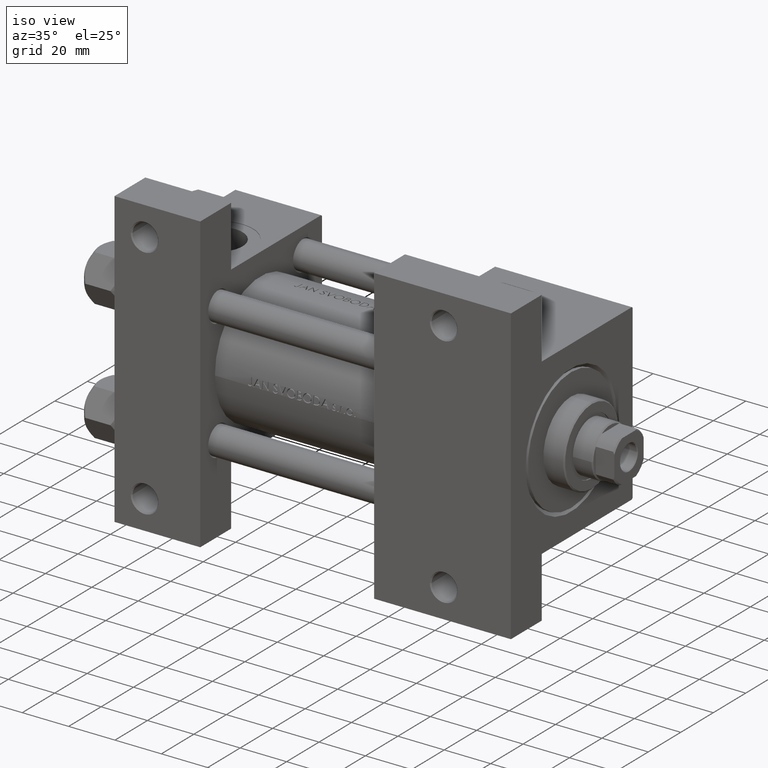
[diagram: clean part render]
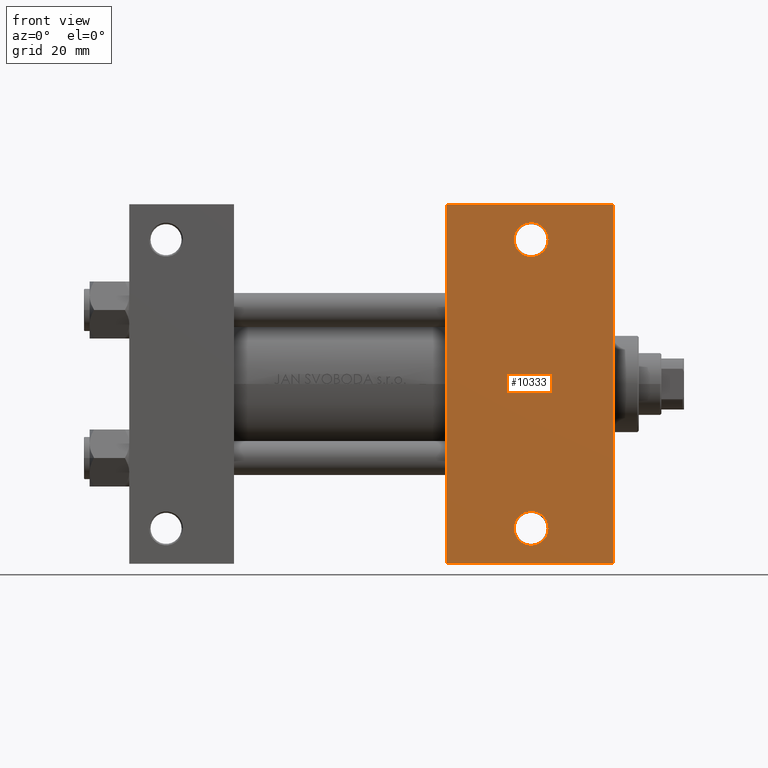
[diagram: tour spotlight — one face highlighted and labeled with its STEP entity id]
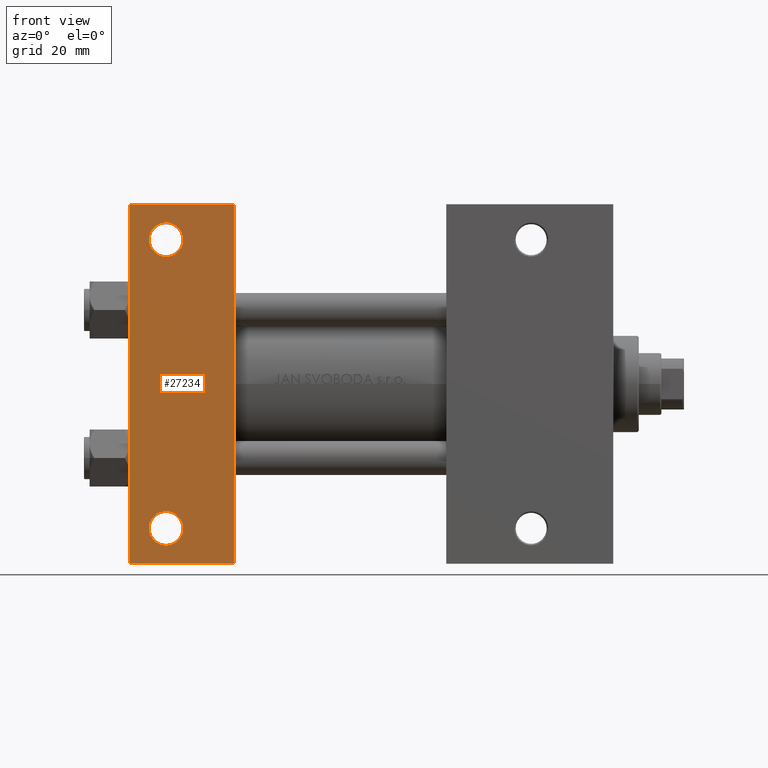
[diagram: tour spotlight — one face highlighted and labeled with its STEP entity id]
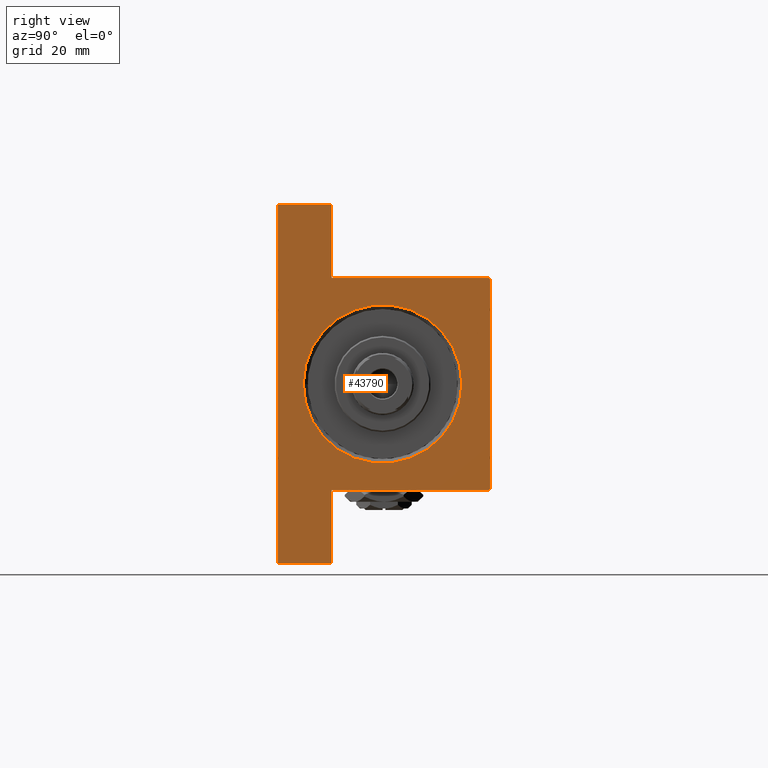
[diagram: tour spotlight — one face highlighted and labeled with its STEP entity id]
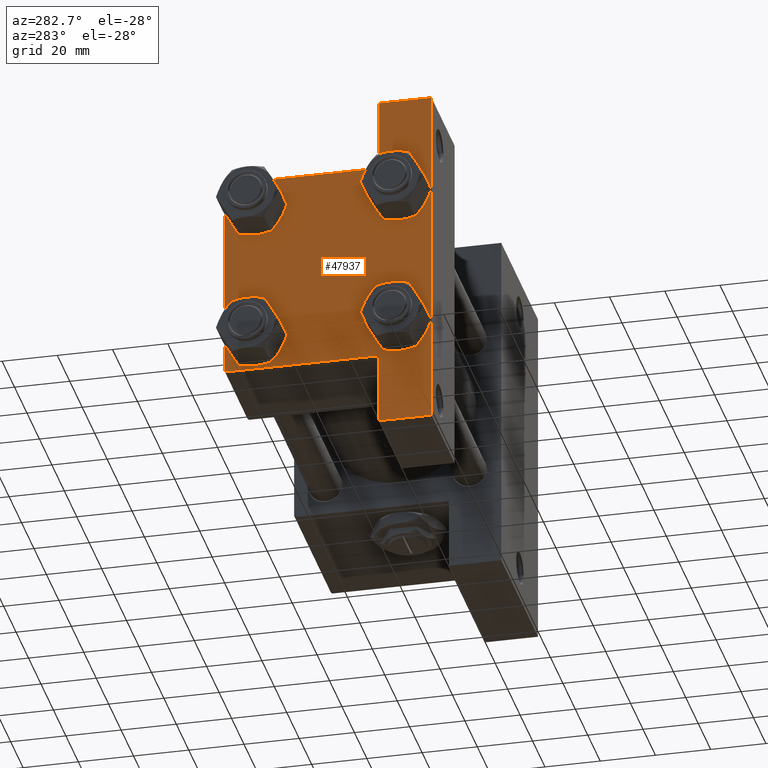
[diagram: tour spotlight — one face highlighted and labeled with its STEP entity id]
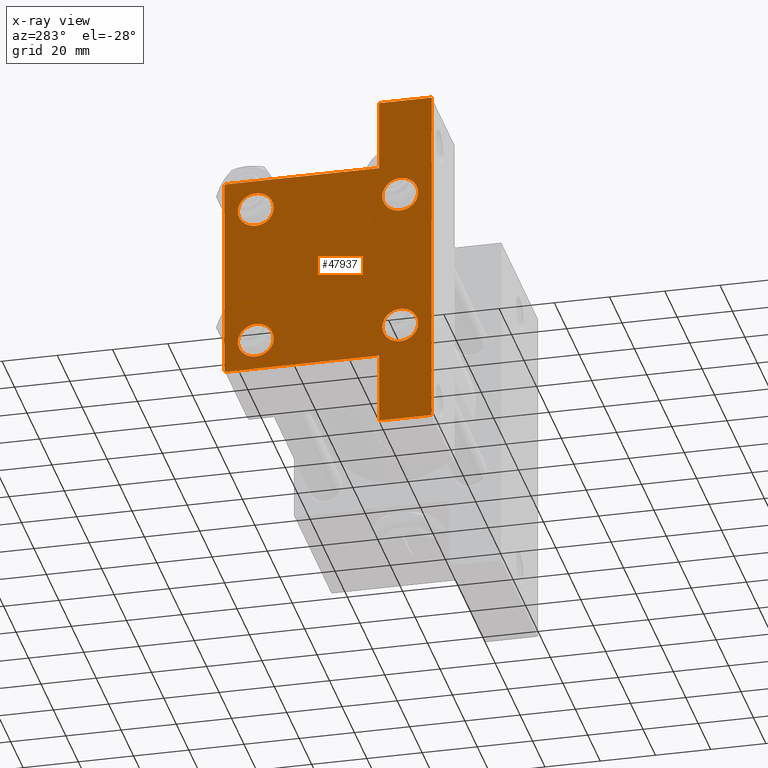
[diagram: x-ray of the same camera — body ghosted, this tour face saturated]
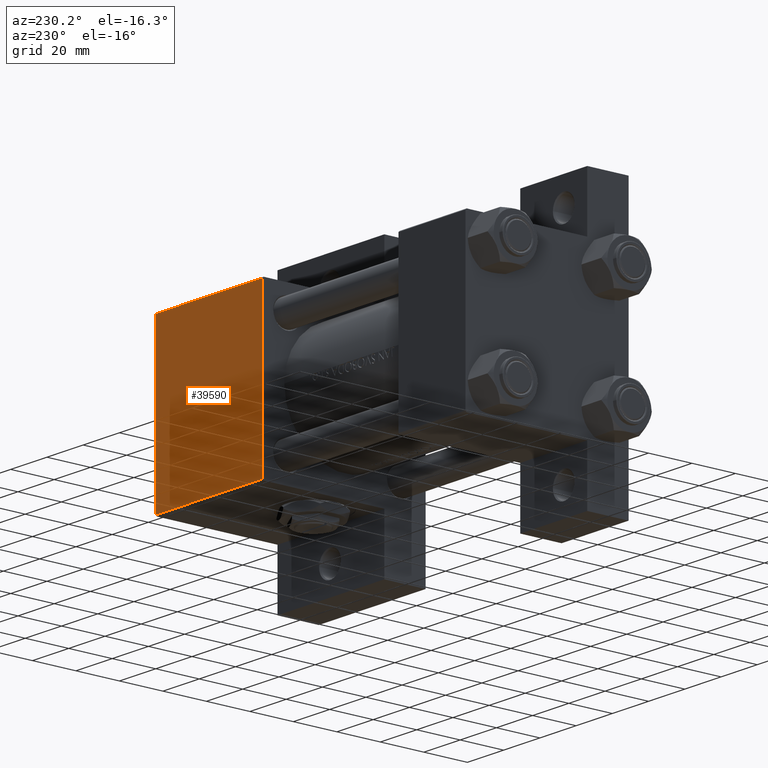
[diagram: tour spotlight — one face highlighted and labeled with its STEP entity id]
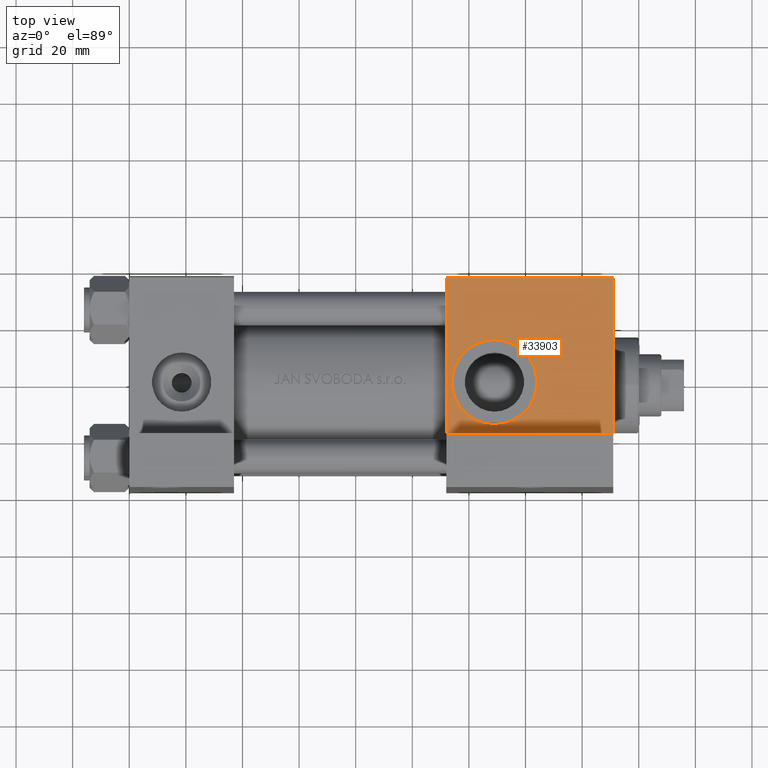
[diagram: tour spotlight — one face highlighted and labeled with its STEP entity id]
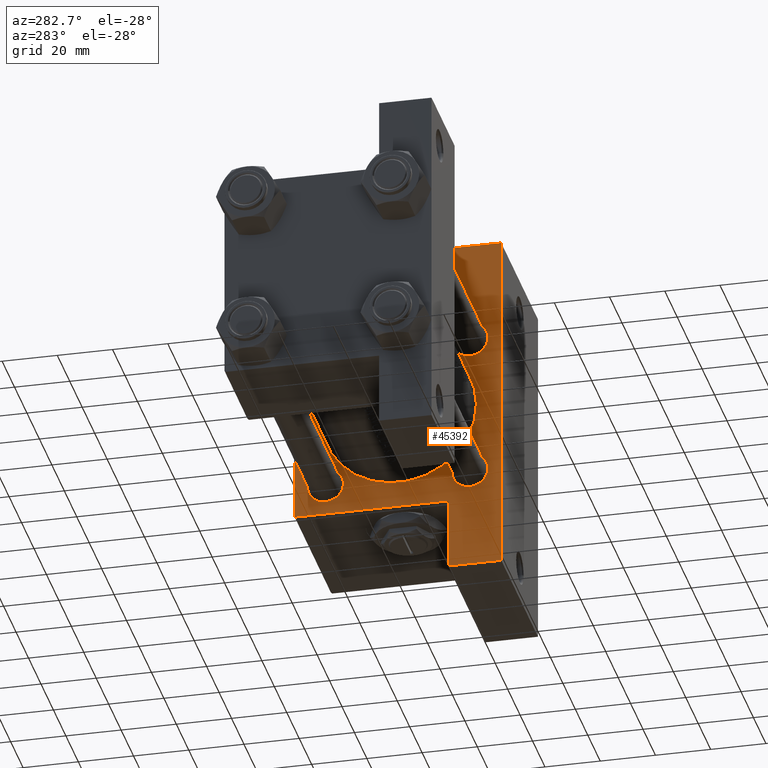
[diagram: tour spotlight — one face highlighted and labeled with its STEP entity id]
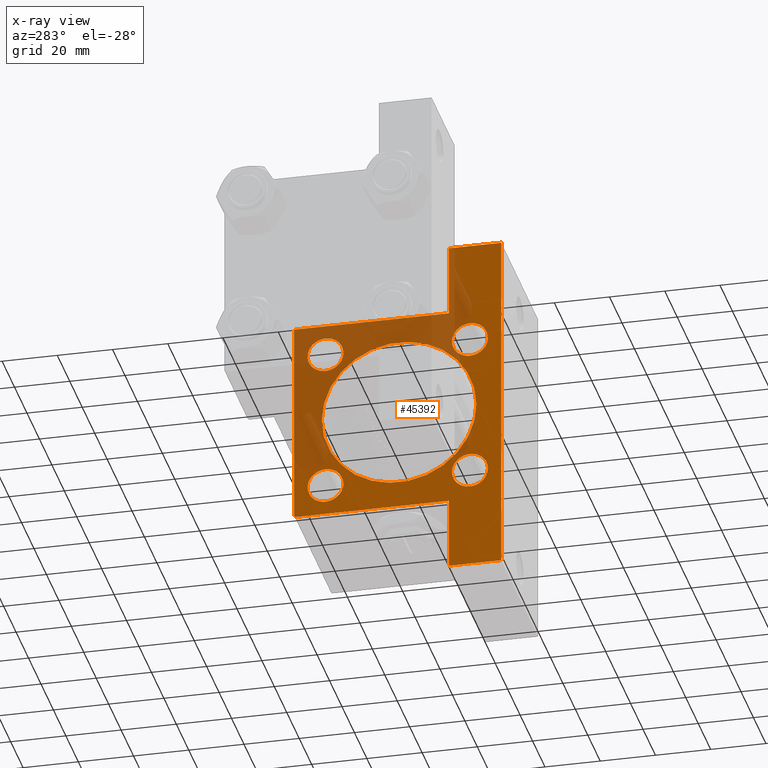
[diagram: x-ray of the same camera — body ghosted, this tour face saturated]
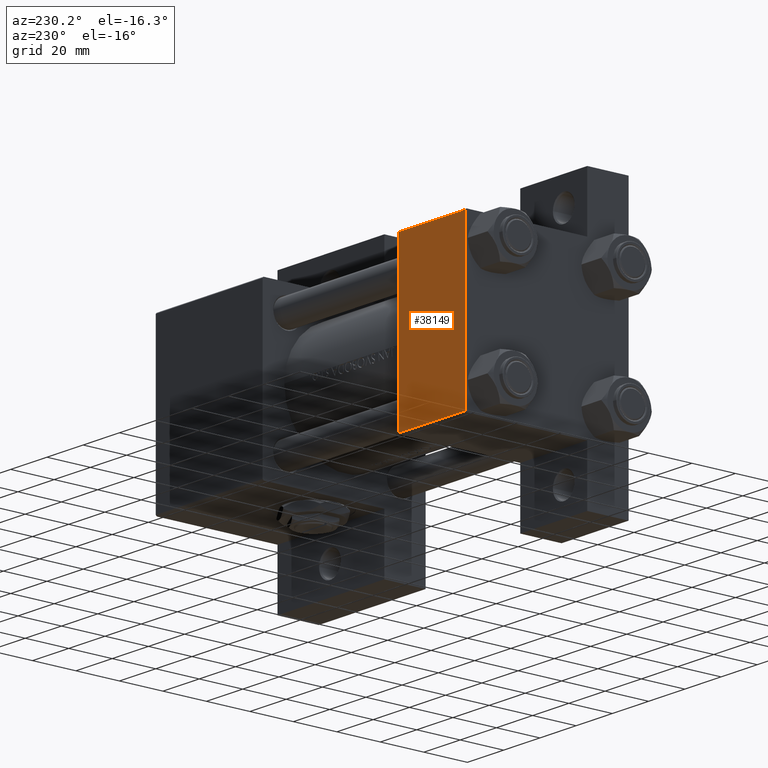
[diagram: tour spotlight — one face highlighted and labeled with its STEP entity id]
A machine part: a face-by-face anatomy tour. The part has 1134 B-rep faces; the first image is the clean iso view, then the 8 largest visible faces are spotlighted one at a time (largest first), each with its STEP entity span.

Face 1 — front view, entity #10333. In plain terms, the highlighted planar face has unit normal (0, -1, 0).
Definition (entity closure, byte-faithful):
#315 = CARTESIAN_POINT ( 'NONE',  ( 136.0005000000000450, -50.99999999999999289, -37.50000000000000000 ) ) ;
#571 = VECTOR ( 'NONE', #35503, 1000.000000000000000 ) ;
#1239 = VERTEX_POINT ( 'NONE', #20776 ) ;
#1490 = ORIENTED_EDGE ( 'NONE', *, *, #36565, .T. ) ;
#1755 = VECTOR ( 'NONE', #30343, 1000.000000000000000 ) ;
#1948 = CARTESIAN_POINT ( 'NONE',  ( 170.9999999999999716, -63.50000000000002842, -37.50000000000000000 ) ) ;
#3057 = DIRECTION ( 'NONE',  ( -0.000000000000000000, -0.000000000000000000, 1.000000000000000000 ) ) ;
#3220 = EDGE_LOOP ( 'NONE', ( #30330, #24699, #41104, #33612 ) ) ;
#6596 = VERTEX_POINT ( 'NONE', #45132 ) ;
#7394 = CARTESIAN_POINT ( 'NONE',  ( 147.9994999999999834, 50.99999999999999289, -37.50000000000000000 ) ) ;
#10289 = ORIENTED_EDGE ( 'NONE', *, *, #15805, .T. ) ;
#10333 = ADVANCED_FACE ( 'NONE', ( #36112, #28658, #47333 ), #17213, .T. ) ;
#10595 = AXIS2_PLACEMENT_3D ( 'NONE', #28982, #3057, #25484 ) ;
#10735 = LINE ( 'NONE', #11224, #40207 ) ;
#11224 = CARTESIAN_POINT ( 'NONE',  ( 170.9999999999999716, 37.50000000000000000, -37.50000000000000000 ) ) ;
#11683 = EDGE_CURVE ( 'NONE', #44704, #44523, #20821, .T. ) ;
#12347 = CARTESIAN_POINT ( 'NONE',  ( 171.0000000000000000, 63.50000000000000000, -37.50000000000000000 ) ) ;
#13319 = AXIS2_PLACEMENT_3D ( 'NONE', #32376, #47573, #40109 ) ;
#13617 = CARTESIAN_POINT ( 'NONE',  ( 111.9999999999999858, 37.50000000000000000, -37.50000000000000000 ) ) ;
#13736 = EDGE_LOOP ( 'NONE', ( #41091, #1490 ) ) ;
#14046 = CARTESIAN_POINT ( 'NONE',  ( 142.0000000000000284, 50.99999999999999289, -37.50000000000000000 ) ) ;
#15805 = EDGE_CURVE ( 'NONE', #6596, #19431, #41288, .T. ) ;
#16117 = CIRCLE ( 'NONE', #31197, 5.999499999999962974 ) ;
#16238 = DIRECTION ( 'NONE',  ( 1.000000000000000000, 0.000000000000000000, 0.000000000000000000 ) ) ;
#17213 = PLANE ( 'NONE',  #13319 ) ;
#17732 = CARTESIAN_POINT ( 'NONE',  ( 142.0000000000000284, -50.99999999999999289, -37.50000000000000000 ) ) ;
#18037 = CARTESIAN_POINT ( 'NONE',  ( 111.9999999999999858, 63.50000000000000000, -37.50000000000000000 ) ) ;
#19177 = AXIS2_PLACEMENT_3D ( 'NONE', #14046, #36917, #44405 ) ;
#19431 = VERTEX_POINT ( 'NONE', #315 ) ;
#19827 = AXIS2_PLACEMENT_3D ( 'NONE', #33966, #41453, #29512 ) ;
#20776 = CARTESIAN_POINT ( 'NONE',  ( 136.0005000000000450, 50.99999999999999289, -37.50000000000000000 ) ) ;
#20821 = LINE ( 'NONE', #13617, #571 ) ;
#21939 = DIRECTION ( 'NONE',  ( -0.000000000000000000, -0.000000000000000000, 1.000000000000000000 ) ) ;
#22213 = VERTEX_POINT ( 'NONE', #1948 ) ;
#22950 = VERTEX_POINT ( 'NONE', #7394 ) ;
#23625 = CARTESIAN_POINT ( 'NONE',  ( 111.9999999999999716, -63.50000000000000000, -37.50000000000000000 ) ) ;
#23699 = LINE ( 'NONE', #42617, #34418 ) ;
#23723 = EDGE_CURVE ( 'NONE', #1239, #22950, #36645, .T. ) ;
#24699 = ORIENTED_EDGE ( 'NONE', *, *, #34836, .T. ) ;
#25109 = EDGE_CURVE ( 'NONE', #22213, #44523, #42548, .T. ) ;
#25484 = DIRECTION ( 'NONE',  ( -1.000000000000000000, 0.000000000000000000, 0.000000000000000000 ) ) ;
#26518 = CARTESIAN_POINT ( 'NONE',  ( 111.9999999999999716, -63.50000000000000000, -37.50000000000000000 ) ) ;
#26638 = DIRECTION ( 'NONE',  ( 0.000000000000000000, -1.000000000000000000, 0.000000000000000000 ) ) ;
#28658 = FACE_BOUND ( 'NONE', #44590, .T. ) ;
#28955 = ORIENTED_EDGE ( 'NONE', *, *, #33408, .T. ) ;
#28982 = CARTESIAN_POINT ( 'NONE',  ( 142.0000000000000284, 50.99999999999999289, -37.50000000000000000 ) ) ;
#29512 = DIRECTION ( 'NONE',  ( -1.000000000000000000, 0.000000000000000000, 0.000000000000000000 ) ) ;
#29877 = VERTEX_POINT ( 'NONE', #12347 ) ;
#30330 = ORIENTED_EDGE ( 'NONE', *, *, #11683, .F. ) ;
#30343 = DIRECTION ( 'NONE',  ( -1.000000000000000000, 4.704334850106594808E-16, -0.000000000000000000 ) ) ;
#31197 = AXIS2_PLACEMENT_3D ( 'NONE', #17732, #21939, #33858 ) ;
#32376 = CARTESIAN_POINT ( 'NONE',  ( 170.9999999999999716, 37.50000000000000000, -37.50000000000000000 ) ) ;
#33408 = EDGE_CURVE ( 'NONE', #19431, #6596, #16117, .T. ) ;
#33612 = ORIENTED_EDGE ( 'NONE', *, *, #25109, .T. ) ;
#33858 = DIRECTION ( 'NONE',  ( -1.000000000000000000, 0.000000000000000000, 0.000000000000000000 ) ) ;
#33966 = CARTESIAN_POINT ( 'NONE',  ( 142.0000000000000284, -50.99999999999999289, -37.50000000000000000 ) ) ;
#34418 = VECTOR ( 'NONE', #16238, 1000.000000000000000 ) ;
#34836 = EDGE_CURVE ( 'NONE', #44704, #29877, #23699, .T. ) ;
#35503 = DIRECTION ( 'NONE',  ( 0.000000000000000000, -1.000000000000000000, 0.000000000000000000 ) ) ;
#36112 = FACE_BOUND ( 'NONE', #13736, .T. ) ;
#36565 = EDGE_CURVE ( 'NONE', #22950, #1239, #45586, .T. ) ;
#36645 = CIRCLE ( 'NONE', #19177, 5.999499999999962974 ) ;
#36917 = DIRECTION ( 'NONE',  ( -0.000000000000000000, -0.000000000000000000, 1.000000000000000000 ) ) ;
#40109 = DIRECTION ( 'NONE',  ( -1.000000000000000000, 0.000000000000000000, -0.000000000000000000 ) ) ;
#40207 = VECTOR ( 'NONE', #26638, 1000.000000000000000 ) ;
#41091 = ORIENTED_EDGE ( 'NONE', *, *, #23723, .T. ) ;
#41104 = ORIENTED_EDGE ( 'NONE', *, *, #41414, .T. ) ;
#41288 = CIRCLE ( 'NONE', #19827, 5.999499999999962974 ) ;
#41414 = EDGE_CURVE ( 'NONE', #29877, #22213, #10735, .T. ) ;
#41453 = DIRECTION ( 'NONE',  ( -0.000000000000000000, -0.000000000000000000, 1.000000000000000000 ) ) ;
#42548 = LINE ( 'NONE', #23625, #1755 ) ;
#42617 = CARTESIAN_POINT ( 'NONE',  ( 111.9999999999999858, 63.50000000000000000, -37.50000000000000000 ) ) ;
#44405 = DIRECTION ( 'NONE',  ( -1.000000000000000000, 0.000000000000000000, 0.000000000000000000 ) ) ;
#44523 = VERTEX_POINT ( 'NONE', #26518 ) ;
#44590 = EDGE_LOOP ( 'NONE', ( #28955, #10289 ) ) ;
#44704 = VERTEX_POINT ( 'NONE', #18037 ) ;
#45132 = CARTESIAN_POINT ( 'NONE',  ( 147.9994999999999834, -50.99999999999999289, -37.50000000000000000 ) ) ;
#45586 = CIRCLE ( 'NONE', #10595, 5.999499999999962974 ) ;
#47333 = FACE_OUTER_BOUND ( 'NONE', #3220, .T. ) ;
#47573 = DIRECTION ( 'NONE',  ( 0.000000000000000000, 0.000000000000000000, -1.000000000000000000 ) ) ;

Face 2 — front view, entity #27234. In plain terms, the highlighted planar face has unit normal (0, -1, -0).
Definition (entity closure, byte-faithful):
#1496 = CARTESIAN_POINT ( 'NONE',  ( 1.595073532467135441E-14, 63.50000000000000000, -37.50000000000002132 ) ) ;
#2239 = LINE ( 'NONE', #1496, #5472 ) ;
#4059 = DIRECTION ( 'NONE',  ( 0.000000000000000000, 1.000000000000000000, 0.000000000000000000 ) ) ;
#4624 = CARTESIAN_POINT ( 'NONE',  ( 3.977209754999747208E-16, -63.50000000000000000, -37.49999999999999289 ) ) ;
#4709 = EDGE_CURVE ( 'NONE', #48599, #30050, #16285, .T. ) ;
#4775 = DIRECTION ( 'NONE',  ( 0.000000000000000000, 1.000000000000000000, 0.000000000000000000 ) ) ;
#5087 = DIRECTION ( 'NONE',  ( 0.000000000000000000, 1.000000000000000000, 0.000000000000000000 ) ) ;
#5345 = CARTESIAN_POINT ( 'NONE',  ( 12.99999999999999822, 50.99999999999997868, -37.50000000000000000 ) ) ;
#5472 = VECTOR ( 'NONE', #17453, 1000.000000000000000 ) ;
#5840 = CARTESIAN_POINT ( 'NONE',  ( 12.99999999999999822, -51.00000000000000711, -37.50000000000000711 ) ) ;
#7234 = CARTESIAN_POINT ( 'NONE',  ( 37.00000000000001421, 63.50000000000000000, -37.50000000000002132 ) ) ;
#7364 = DIRECTION ( 'NONE',  ( -1.000000000000000000, -0.000000000000000000, -0.000000000000000000 ) ) ;
#7495 = VERTEX_POINT ( 'NONE', #35217 ) ;
#7665 = EDGE_CURVE ( 'NONE', #30050, #48599, #45014, .T. ) ;
#7680 = VECTOR ( 'NONE', #7364, 1000.000000000000000 ) ;
#7979 = EDGE_LOOP ( 'NONE', ( #36957, #26556 ) ) ;
#8592 = VECTOR ( 'NONE', #48788, 1000.000000000000000 ) ;
#8844 = FACE_BOUND ( 'NONE', #7979, .T. ) ;
#9336 = CARTESIAN_POINT ( 'NONE',  ( 7.000500000000061895, 50.99999999999997868, -37.50000000000000000 ) ) ;
#9666 = EDGE_CURVE ( 'NONE', #13260, #49161, #18839, .T. ) ;
#9690 = CIRCLE ( 'NONE', #26362, 5.999499999999935440 ) ;
#10042 = CARTESIAN_POINT ( 'NONE',  ( 1.595073532467135441E-14, 63.50000000000000000, -37.50000000000002132 ) ) ;
#11105 = ORIENTED_EDGE ( 'NONE', *, *, #28999, .T. ) ;
#11509 = AXIS2_PLACEMENT_3D ( 'NONE', #22994, #45889, #4059 ) ;
#12217 = AXIS2_PLACEMENT_3D ( 'NONE', #12779, #39888, #4775 ) ;
#12346 = FACE_BOUND ( 'NONE', #25281, .T. ) ;
#12779 = CARTESIAN_POINT ( 'NONE',  ( 12.99999999999999822, 50.99999999999997868, -37.50000000000000000 ) ) ;
#13103 = DIRECTION ( 'NONE',  ( -0.000000000000000000, -9.251858538542972814E-17, 1.000000000000000000 ) ) ;
#13260 = VERTEX_POINT ( 'NONE', #32595 ) ;
#14753 = ORIENTED_EDGE ( 'NONE', *, *, #17973, .T. ) ;
#15161 = EDGE_CURVE ( 'NONE', #30290, #13260, #33356, .T. ) ;
#15848 = EDGE_CURVE ( 'NONE', #39309, #49161, #37713, .T. ) ;
#16285 = CIRCLE ( 'NONE', #11509, 5.999499999999962974 ) ;
#17453 = DIRECTION ( 'NONE',  ( 1.000000000000000000, 0.000000000000000000, 0.000000000000000000 ) ) ;
#17466 = VECTOR ( 'NONE', #22043, 1000.000000000000000 ) ;
#17593 = ORIENTED_EDGE ( 'NONE', *, *, #9666, .T. ) ;
#17973 = EDGE_CURVE ( 'NONE', #39309, #30290, #2239, .T. ) ;
#18031 = CARTESIAN_POINT ( 'NONE',  ( 37.00000000000000000, 37.49999999999999289, -37.50000000000000000 ) ) ;
#18180 = CARTESIAN_POINT ( 'NONE',  ( 7.000500000000034362, -51.00000000000000711, -37.50000000000000711 ) ) ;
#18282 = DIRECTION ( 'NONE',  ( 0.000000000000000000, 1.000000000000000000, 9.251858538542972814E-17 ) ) ;
#18839 = LINE ( 'NONE', #25802, #7680 ) ;
#20283 = DIRECTION ( 'NONE',  ( -0.000000000000000000, -9.251858538542972814E-17, 1.000000000000000000 ) ) ;
#21801 = CARTESIAN_POINT ( 'NONE',  ( 0.000000000000000000, 37.49999999999999289, -37.50000000000000000 ) ) ;
#22043 = DIRECTION ( 'NONE',  ( 0.000000000000000000, -1.000000000000000000, -9.251858538542972814E-17 ) ) ;
#22994 = CARTESIAN_POINT ( 'NONE',  ( 12.99999999999999822, -51.00000000000000711, -37.50000000000000711 ) ) ;
#23764 = ORIENTED_EDGE ( 'NONE', *, *, #15161, .T. ) ;
#25281 = EDGE_LOOP ( 'NONE', ( #29678, #11105 ) ) ;
#25802 = CARTESIAN_POINT ( 'NONE',  ( 3.977209754999747208E-16, -63.50000000000000000, -37.49999999999999289 ) ) ;
#26362 = AXIS2_PLACEMENT_3D ( 'NONE', #5345, #20283, #5087 ) ;
#26556 = ORIENTED_EDGE ( 'NONE', *, *, #7665, .T. ) ;
#27234 = ADVANCED_FACE ( 'NONE', ( #12346, #8844, #42951 ), #27512, .T. ) ;
#27512 = PLANE ( 'NONE',  #37454 ) ;
#27537 = AXIS2_PLACEMENT_3D ( 'NONE', #5840, #13103, #28749 ) ;
#28749 = DIRECTION ( 'NONE',  ( 0.000000000000000000, 1.000000000000000000, 0.000000000000000000 ) ) ;
#28999 = EDGE_CURVE ( 'NONE', #7495, #29205, #9690, .T. ) ;
#29205 = VERTEX_POINT ( 'NONE', #9336 ) ;
#29228 = DIRECTION ( 'NONE',  ( 0.000000000000000000, 9.251858538542972814E-17, -1.000000000000000000 ) ) ;
#29678 = ORIENTED_EDGE ( 'NONE', *, *, #35785, .T. ) ;
#30050 = VERTEX_POINT ( 'NONE', #44421 ) ;
#30290 = VERTEX_POINT ( 'NONE', #7234 ) ;
#32595 = CARTESIAN_POINT ( 'NONE',  ( 37.00000000000000000, -63.50000000000000000, -37.49999999999999289 ) ) ;
#33356 = LINE ( 'NONE', #45303, #8592 ) ;
#35217 = CARTESIAN_POINT ( 'NONE',  ( 18.99949999999993366, 50.99999999999997868, -37.50000000000000000 ) ) ;
#35785 = EDGE_CURVE ( 'NONE', #29205, #7495, #40039, .T. ) ;
#36653 = ORIENTED_EDGE ( 'NONE', *, *, #15848, .F. ) ;
#36957 = ORIENTED_EDGE ( 'NONE', *, *, #4709, .T. ) ;
#37454 = AXIS2_PLACEMENT_3D ( 'NONE', #18031, #29228, #18282 ) ;
#37700 = EDGE_LOOP ( 'NONE', ( #36653, #14753, #23764, #17593 ) ) ;
#37713 = LINE ( 'NONE', #21801, #17466 ) ;
#39309 = VERTEX_POINT ( 'NONE', #10042 ) ;
#39888 = DIRECTION ( 'NONE',  ( -0.000000000000000000, -9.251858538542972814E-17, 1.000000000000000000 ) ) ;
#40039 = CIRCLE ( 'NONE', #12217, 5.999499999999935440 ) ;
#42951 = FACE_OUTER_BOUND ( 'NONE', #37700, .T. ) ;
#44421 = CARTESIAN_POINT ( 'NONE',  ( 18.99949999999996209, -51.00000000000000711, -37.50000000000000711 ) ) ;
#45014 = CIRCLE ( 'NONE', #27537, 5.999499999999962974 ) ;
#45303 = CARTESIAN_POINT ( 'NONE',  ( 37.00000000000000000, 37.49999999999999289, -37.50000000000000000 ) ) ;
#45889 = DIRECTION ( 'NONE',  ( -0.000000000000000000, -9.251858538542972814E-17, 1.000000000000000000 ) ) ;
#48599 = VERTEX_POINT ( 'NONE', #18180 ) ;
#48788 = DIRECTION ( 'NONE',  ( 0.000000000000000000, -1.000000000000000000, -9.251858538542972814E-17 ) ) ;
#49161 = VERTEX_POINT ( 'NONE', #4624 ) ;

Face 3 — right view, entity #43790. In plain terms, the highlighted planar face has unit normal (-1, 0, 0).
Definition (entity closure, byte-faithful):
#468 = VECTOR ( 'NONE', #37561, 1000.000000000000000 ) ;
#745 = DIRECTION ( 'NONE',  ( -1.000000000000000000, -0.000000000000000000, 0.000000000000000000 ) ) ;
#1948 = CARTESIAN_POINT ( 'NONE',  ( 170.9999999999999716, -63.50000000000002842, -37.50000000000000000 ) ) ;
#4470 = VECTOR ( 'NONE', #5106, 1000.000000000000114 ) ;
#4517 = ORIENTED_EDGE ( 'NONE', *, *, #17659, .T. ) ;
#4948 = CARTESIAN_POINT ( 'NONE',  ( 170.9999999999999716, 37.00000000000000000, 37.49999999999999289 ) ) ;
#5106 = DIRECTION ( 'NONE',  ( -0.000000000000000000, -0.7071067811865474617, -0.7071067811865474617 ) ) ;
#5362 = VECTOR ( 'NONE', #47524, 1000.000000000000114 ) ;
#5399 = EDGE_CURVE ( 'NONE', #22410, #18668, #29034, .T. ) ;
#7184 = LINE ( 'NONE', #38053, #468 ) ;
#7226 = EDGE_CURVE ( 'NONE', #38439, #40951, #36508, .T. ) ;
#7533 = CARTESIAN_POINT ( 'NONE',  ( 170.9999999999999716, 37.50000000000000000, 36.99999999999999289 ) ) ;
#8487 = AXIS2_PLACEMENT_3D ( 'NONE', #9544, #20984, #38921 ) ;
#8499 = EDGE_LOOP ( 'NONE', ( #40966, #28183, #19669, #38571, #12903, #29354, #46778, #43779, #18387, #32326 ) ) ;
#9544 = CARTESIAN_POINT ( 'NONE',  ( 170.9999999999999716, 0.000000000000000000, 0.000000000000000000 ) ) ;
#10035 = CARTESIAN_POINT ( 'NONE',  ( 171.0000000000000000, 63.50000000000000000, -18.50000000000000000 ) ) ;
#10098 = EDGE_CURVE ( 'NONE', #23039, #29877, #20989, .T. ) ;
#10735 = LINE ( 'NONE', #11224, #40207 ) ;
#11224 = CARTESIAN_POINT ( 'NONE',  ( 170.9999999999999716, 37.50000000000000000, -37.50000000000000000 ) ) ;
#11244 = EDGE_CURVE ( 'NONE', #20518, #38439, #12706, .T. ) ;
#11686 = VECTOR ( 'NONE', #32429, 1000.000000000000000 ) ;
#11787 = VECTOR ( 'NONE', #41354, 1000.000000000000000 ) ;
#11981 = CARTESIAN_POINT ( 'NONE',  ( 170.9999999999999716, 0.000000000000000000, -0.5000000000000004441 ) ) ;
#12347 = CARTESIAN_POINT ( 'NONE',  ( 171.0000000000000000, 63.50000000000000000, -37.50000000000000000 ) ) ;
#12631 = CARTESIAN_POINT ( 'NONE',  ( 170.9999999999999716, 0.000000000000000000, -0.5000000000000004441 ) ) ;
#12706 = LINE ( 'NONE', #4948, #5362 ) ;
#12768 = CARTESIAN_POINT ( 'NONE',  ( 170.9999999999999716, -63.50000000000002842, -18.50000000000000000 ) ) ;
#12903 = ORIENTED_EDGE ( 'NONE', *, *, #42411, .T. ) ;
#14749 = EDGE_LOOP ( 'NONE', ( #23155, #4517 ) ) ;
#14959 = VERTEX_POINT ( 'NONE', #12768 ) ;
#14968 = LINE ( 'NONE', #26402, #11787 ) ;
#16608 = CIRCLE ( 'NONE', #36475, 27.99999999999996803 ) ;
#16753 = EDGE_CURVE ( 'NONE', #20518, #44340, #14968, .T. ) ;
#17659 = EDGE_CURVE ( 'NONE', #18668, #22410, #16608, .T. ) ;
#18387 = ORIENTED_EDGE ( 'NONE', *, *, #10098, .F. ) ;
#18668 = VERTEX_POINT ( 'NONE', #37439 ) ;
#19669 = ORIENTED_EDGE ( 'NONE', *, *, #7226, .T. ) ;
#19814 = CARTESIAN_POINT ( 'NONE',  ( 170.9999999999999716, -37.50000000000000000, 36.99999999999997868 ) ) ;
#19989 = LINE ( 'NONE', #20237, #35531 ) ;
#20237 = CARTESIAN_POINT ( 'NONE',  ( 170.9999999999999716, -63.50000000000002842, -18.50000000000000000 ) ) ;
#20518 = VERTEX_POINT ( 'NONE', #7533 ) ;
#20931 = CARTESIAN_POINT ( 'NONE',  ( 170.9999999999999716, -63.50000000000002842, -18.50000000000000000 ) ) ;
#20984 = DIRECTION ( 'NONE',  ( -1.000000000000000000, -0.000000000000000000, 0.000000000000000000 ) ) ;
#20989 = LINE ( 'NONE', #10035, #11686 ) ;
#22213 = VERTEX_POINT ( 'NONE', #1948 ) ;
#22410 = VERTEX_POINT ( 'NONE', #39754 ) ;
#23039 = VERTEX_POINT ( 'NONE', #33783 ) ;
#23155 = ORIENTED_EDGE ( 'NONE', *, *, #5399, .T. ) ;
#23797 = CARTESIAN_POINT ( 'NONE',  ( 170.9999999999999716, -37.50000000000000000, 37.49999999999997868 ) ) ;
#24073 = VERTEX_POINT ( 'NONE', #49041 ) ;
#24923 = LINE ( 'NONE', #20931, #44286 ) ;
#26402 = CARTESIAN_POINT ( 'NONE',  ( 170.9999999999999716, 37.50000000000000000, 37.49999999999999289 ) ) ;
#26638 = DIRECTION ( 'NONE',  ( 0.000000000000000000, -1.000000000000000000, 0.000000000000000000 ) ) ;
#26902 = DIRECTION ( 'NONE',  ( 0.000000000000000000, 0.000000000000000000, 1.000000000000000000 ) ) ;
#27521 = LINE ( 'NONE', #23797, #36279 ) ;
#28183 = ORIENTED_EDGE ( 'NONE', *, *, #11244, .T. ) ;
#28222 = FACE_BOUND ( 'NONE', #14749, .T. ) ;
#28417 = DIRECTION ( 'NONE',  ( 0.000000000000000000, 0.000000000000000000, -1.000000000000000000 ) ) ;
#29034 = CIRCLE ( 'NONE', #39381, 27.99999999999996803 ) ;
#29354 = ORIENTED_EDGE ( 'NONE', *, *, #44957, .T. ) ;
#29877 = VERTEX_POINT ( 'NONE', #12347 ) ;
#29904 = VECTOR ( 'NONE', #33011, 1000.000000000000000 ) ;
#30792 = CARTESIAN_POINT ( 'NONE',  ( 170.9999999999999716, -37.00000000000000000, 37.49999999999997868 ) ) ;
#31260 = DIRECTION ( 'NONE',  ( 0.000000000000000000, 0.000000000000000000, 1.000000000000000000 ) ) ;
#32326 = ORIENTED_EDGE ( 'NONE', *, *, #46402, .T. ) ;
#32429 = DIRECTION ( 'NONE',  ( 0.000000000000000000, 0.000000000000000000, -1.000000000000000000 ) ) ;
#33011 = DIRECTION ( 'NONE',  ( 0.000000000000000000, -1.000000000000000000, -1.850371707708594316E-16 ) ) ;
#33783 = CARTESIAN_POINT ( 'NONE',  ( 171.0000000000000000, 63.50000000000000000, -18.50000000000000000 ) ) ;
#35235 = DIRECTION ( 'NONE',  ( -1.000000000000000000, -0.000000000000000000, 0.000000000000000000 ) ) ;
#35406 = DIRECTION ( 'NONE',  ( -0.000000000000000000, -1.000000000000000000, -0.000000000000000000 ) ) ;
#35472 = LINE ( 'NONE', #19814, #4470 ) ;
#35531 = VECTOR ( 'NONE', #35406, 1000.000000000000000 ) ;
#36279 = VECTOR ( 'NONE', #39964, 1000.000000000000000 ) ;
#36475 = AXIS2_PLACEMENT_3D ( 'NONE', #11981, #745, #26902 ) ;
#36508 = LINE ( 'NONE', #36749, #29904 ) ;
#36749 = CARTESIAN_POINT ( 'NONE',  ( 170.9999999999999716, 37.50000000000000000, 37.49999999999999289 ) ) ;
#37439 = CARTESIAN_POINT ( 'NONE',  ( 170.9999999999999716, 3.429011037612585332E-15, 27.49999999999996803 ) ) ;
#37561 = DIRECTION ( 'NONE',  ( -1.067522139062649685E-15, -1.000000000000000000, 0.000000000000000000 ) ) ;
#38053 = CARTESIAN_POINT ( 'NONE',  ( 171.0000000000000000, 63.50000000000000000, -18.50000000000000000 ) ) ;
#38181 = CARTESIAN_POINT ( 'NONE',  ( 170.9999999999999716, 37.00000000000000000, 37.49999999999999289 ) ) ;
#38439 = VERTEX_POINT ( 'NONE', #38181 ) ;
#38571 = ORIENTED_EDGE ( 'NONE', *, *, #42367, .T. ) ;
#38921 = DIRECTION ( 'NONE',  ( 0.000000000000000000, 0.000000000000000000, 1.000000000000000000 ) ) ;
#39381 = AXIS2_PLACEMENT_3D ( 'NONE', #12631, #35235, #31260 ) ;
#39754 = CARTESIAN_POINT ( 'NONE',  ( 170.9999999999999716, 0.000000000000000000, -28.49999999999997158 ) ) ;
#39964 = DIRECTION ( 'NONE',  ( 0.000000000000000000, -9.251858538542972814E-17, -1.000000000000000000 ) ) ;
#40207 = VECTOR ( 'NONE', #26638, 1000.000000000000000 ) ;
#40951 = VERTEX_POINT ( 'NONE', #30792 ) ;
#40966 = ORIENTED_EDGE ( 'NONE', *, *, #16753, .F. ) ;
#41354 = DIRECTION ( 'NONE',  ( 0.000000000000000000, 0.000000000000000000, -1.000000000000000000 ) ) ;
#41414 = EDGE_CURVE ( 'NONE', #29877, #22213, #10735, .T. ) ;
#42043 = CARTESIAN_POINT ( 'NONE',  ( 170.9999999999999716, 37.49999999999997868, -18.50000000000000000 ) ) ;
#42367 = EDGE_CURVE ( 'NONE', #40951, #24073, #35472, .T. ) ;
#42411 = EDGE_CURVE ( 'NONE', #24073, #42666, #27521, .T. ) ;
#42666 = VERTEX_POINT ( 'NONE', #46380 ) ;
#42908 = PLANE ( 'NONE',  #8487 ) ;
#43653 = FACE_OUTER_BOUND ( 'NONE', #8499, .T. ) ;
#43779 = ORIENTED_EDGE ( 'NONE', *, *, #41414, .F. ) ;
#43790 = ADVANCED_FACE ( 'NONE', ( #28222, #43653 ), #42908, .F. ) ;
#44286 = VECTOR ( 'NONE', #28417, 1000.000000000000000 ) ;
#44340 = VERTEX_POINT ( 'NONE', #42043 ) ;
#44957 = EDGE_CURVE ( 'NONE', #42666, #14959, #19989, .T. ) ;
#46380 = CARTESIAN_POINT ( 'NONE',  ( 170.9999999999999716, -37.50000000000000711, -18.50000000000000355 ) ) ;
#46402 = EDGE_CURVE ( 'NONE', #23039, #44340, #7184, .T. ) ;
#46778 = ORIENTED_EDGE ( 'NONE', *, *, #48493, .T. ) ;
#47524 = DIRECTION ( 'NONE',  ( 0.000000000000000000, -0.7071067811865474617, 0.7071067811865474617 ) ) ;
#48493 = EDGE_CURVE ( 'NONE', #14959, #22213, #24923, .T. ) ;
#49041 = CARTESIAN_POINT ( 'NONE',  ( 170.9999999999999716, -37.50000000000000000, 36.99999999999997868 ) ) ;

Face 4 — auxiliary view, entity #47937. An x-ray twin of the same camera follows (body ghosted, this face saturated) — the face is partly hidden behind the body. In plain terms, the highlighted planar face has unit normal (-1, 0, -0).
Definition (entity closure, byte-faithful):
#27 = EDGE_LOOP ( 'NONE', ( #38021, #4356 ) ) ;
#183 = CARTESIAN_POINT ( 'NONE',  ( 0.000000000000000000, 26.14999999999999858, 26.15000000000000213 ) ) ;
#772 = LINE ( 'NONE', #38631, #42334 ) ;
#1686 = CIRCLE ( 'NONE', #4876, 6.500000000000023093 ) ;
#1896 = EDGE_CURVE ( 'NONE', #40793, #32571, #5479, .T. ) ;
#2561 = ORIENTED_EDGE ( 'NONE', *, *, #3458, .F. ) ;
#2782 = EDGE_CURVE ( 'NONE', #32571, #49161, #6684, .T. ) ;
#3092 = VERTEX_POINT ( 'NONE', #40508 ) ;
#3136 = LINE ( 'NONE', #11121, #46442 ) ;
#3458 = EDGE_CURVE ( 'NONE', #44971, #19686, #3136, .T. ) ;
#3800 = CARTESIAN_POINT ( 'NONE',  ( 0.000000000000000000, 37.49999999999999289, -18.49999999999999645 ) ) ;
#4125 = EDGE_CURVE ( 'NONE', #7323, #37039, #29798, .T. ) ;
#4321 = VERTEX_POINT ( 'NONE', #17387 ) ;
#4356 = ORIENTED_EDGE ( 'NONE', *, *, #30382, .T. ) ;
#4624 = CARTESIAN_POINT ( 'NONE',  ( 3.977209754999747208E-16, -63.50000000000000000, -37.49999999999999289 ) ) ;
#4869 = CIRCLE ( 'NONE', #47035, 6.500000000000015987 ) ;
#4876 = AXIS2_PLACEMENT_3D ( 'NONE', #41039, #22115, #42195 ) ;
#5013 = LINE ( 'NONE', #19719, #44741 ) ;
#5264 = DIRECTION ( 'NONE',  ( 0.000000000000000000, 9.251858538542971581E-17, -1.000000000000000000 ) ) ;
#5281 = EDGE_CURVE ( 'NONE', #44971, #39309, #42224, .T. ) ;
#5479 = LINE ( 'NONE', #46807, #48011 ) ;
#6545 = ORIENTED_EDGE ( 'NONE', *, *, #30717, .F. ) ;
#6684 = LINE ( 'NONE', #48032, #37689 ) ;
#6908 = ORIENTED_EDGE ( 'NONE', *, *, #27522, .F. ) ;
#7323 = VERTEX_POINT ( 'NONE', #45205 ) ;
#8420 = VERTEX_POINT ( 'NONE', #26527 ) ;
#8721 = DIRECTION ( 'NONE',  ( 4.278042683914906889E-17, -1.000000000000000000, 0.000000000000000000 ) ) ;
#9556 = ORIENTED_EDGE ( 'NONE', *, *, #2782, .F. ) ;
#10042 = CARTESIAN_POINT ( 'NONE',  ( 1.595073532467135441E-14, 63.50000000000000000, -37.50000000000002132 ) ) ;
#10392 = DIRECTION ( 'NONE',  ( 0.000000000000000000, 0.000000000000000000, 1.000000000000000000 ) ) ;
#10656 = DIRECTION ( 'NONE',  ( -0.000000000000000000, 0.7071067811865474617, 0.7071067811865474617 ) ) ;
#10869 = DIRECTION ( 'NONE',  ( 0.000000000000000000, 0.000000000000000000, 1.000000000000000000 ) ) ;
#10907 = CARTESIAN_POINT ( 'NONE',  ( -0.000000000000000000, -37.25000000000000000, 37.25000000000000000 ) ) ;
#11069 = FACE_BOUND ( 'NONE', #27, .T. ) ;
#11121 = CARTESIAN_POINT ( 'NONE',  ( 1.595073532467135757E-14, 63.50000000000001421, -18.50000000000000355 ) ) ;
#11268 = ORIENTED_EDGE ( 'NONE', *, *, #15848, .T. ) ;
#11304 = FACE_BOUND ( 'NONE', #42418, .T. ) ;
#11477 = DIRECTION ( 'NONE',  ( 1.000000000000000000, -0.000000000000000000, 0.000000000000000000 ) ) ;
#11770 = CARTESIAN_POINT ( 'NONE',  ( 0.000000000000000000, 26.14999999999999858, -19.64999999999998792 ) ) ;
#12849 = VERTEX_POINT ( 'NONE', #11770 ) ;
#12985 = AXIS2_PLACEMENT_3D ( 'NONE', #45573, #11477, #41838 ) ;
#13552 = ORIENTED_EDGE ( 'NONE', *, *, #1896, .F. ) ;
#14428 = DIRECTION ( 'NONE',  ( 0.000000000000000000, -1.734723475976806848E-16, -1.000000000000000000 ) ) ;
#14954 = CIRCLE ( 'NONE', #26958, 6.500000000000015987 ) ;
#15110 = CARTESIAN_POINT ( 'NONE',  ( 1.595073532467135441E-14, 63.50000000000001421, 26.72167621838005047 ) ) ;
#15400 = DIRECTION ( 'NONE',  ( 0.000000000000000000, 0.000000000000000000, 1.000000000000000000 ) ) ;
#15848 = EDGE_CURVE ( 'NONE', #39309, #49161, #37713, .T. ) ;
#15961 = DIRECTION ( 'NONE',  ( 1.000000000000000000, -0.000000000000000000, 0.000000000000000000 ) ) ;
#16080 = EDGE_CURVE ( 'NONE', #4321, #16674, #14954, .T. ) ;
#16370 = CIRCLE ( 'NONE', #44184, 6.500000000000023093 ) ;
#16493 = DIRECTION ( 'NONE',  ( 0.000000000000000000, 0.7071067811865474617, -0.7071067811865474617 ) ) ;
#16674 = VERTEX_POINT ( 'NONE', #37369 ) ;
#17167 = ORIENTED_EDGE ( 'NONE', *, *, #5281, .T. ) ;
#17387 = CARTESIAN_POINT ( 'NONE',  ( 0.000000000000000000, -26.14999999999999147, -19.64999999999999503 ) ) ;
#17466 = VECTOR ( 'NONE', #22043, 1000.000000000000000 ) ;
#17726 = CIRCLE ( 'NONE', #32037, 6.500000000000023093 ) ;
#18536 = FACE_OUTER_BOUND ( 'NONE', #40425, .T. ) ;
#18546 = ORIENTED_EDGE ( 'NONE', *, *, #22964, .T. ) ;
#19074 = DIRECTION ( 'NONE',  ( -2.877097866686192789E-16, -1.000000000000000000, 0.000000000000000000 ) ) ;
#19310 = DIRECTION ( 'NONE',  ( 0.000000000000000000, 0.000000000000000000, -1.000000000000000000 ) ) ;
#19686 = VERTEX_POINT ( 'NONE', #3800 ) ;
#19719 = CARTESIAN_POINT ( 'NONE',  ( 0.000000000000000000, 37.24999999999999289, 37.24999999999999289 ) ) ;
#20280 = EDGE_CURVE ( 'NONE', #8420, #19686, #38972, .T. ) ;
#20292 = VECTOR ( 'NONE', #26541, 1000.000000000000000 ) ;
#21801 = CARTESIAN_POINT ( 'NONE',  ( 0.000000000000000000, 37.49999999999999289, -37.50000000000000000 ) ) ;
#22026 = AXIS2_PLACEMENT_3D ( 'NONE', #26478, #41426, #48643 ) ;
#22043 = DIRECTION ( 'NONE',  ( 0.000000000000000000, -1.000000000000000000, -9.251858538542972814E-17 ) ) ;
#22115 = DIRECTION ( 'NONE',  ( 1.000000000000000000, -0.000000000000000000, 0.000000000000000000 ) ) ;
#22612 = DIRECTION ( 'NONE',  ( 1.000000000000000000, -0.000000000000000000, 0.000000000000000000 ) ) ;
#22964 = EDGE_CURVE ( 'NONE', #26683, #43979, #26315, .T. ) ;
#23891 = VERTEX_POINT ( 'NONE', #43378 ) ;
#24343 = EDGE_CURVE ( 'NONE', #23891, #42671, #1686, .T. ) ;
#24765 = VECTOR ( 'NONE', #34658, 1000.000000000000000 ) ;
#25506 = PLANE ( 'NONE',  #22026 ) ;
#25560 = CARTESIAN_POINT ( 'NONE',  ( 0.000000000000000000, 26.14999999999999858, 19.64999999999998437 ) ) ;
#26315 = LINE ( 'NONE', #10907, #45388 ) ;
#26478 = CARTESIAN_POINT ( 'NONE',  ( 0.000000000000000000, 0.000000000000000000, 0.000000000000000000 ) ) ;
#26527 = CARTESIAN_POINT ( 'NONE',  ( 0.000000000000000000, 37.49999999999999289, 37.00000000000000000 ) ) ;
#26541 = DIRECTION ( 'NONE',  ( 0.000000000000000000, -1.734723475976806848E-16, -1.000000000000000000 ) ) ;
#26683 = VERTEX_POINT ( 'NONE', #46362 ) ;
#26958 = AXIS2_PLACEMENT_3D ( 'NONE', #29878, #45066, #33605 ) ;
#27171 = ORIENTED_EDGE ( 'NONE', *, *, #30319, .T. ) ;
#27431 = DIRECTION ( 'NONE',  ( 1.000000000000000000, -0.000000000000000000, 0.000000000000000000 ) ) ;
#27522 = EDGE_CURVE ( 'NONE', #3092, #43979, #31427, .T. ) ;
#27934 = EDGE_CURVE ( 'NONE', #48656, #12849, #4869, .T. ) ;
#28799 = CARTESIAN_POINT ( 'NONE',  ( 3.977209754999747208E-16, -63.50000000000000000, -18.50000000000000355 ) ) ;
#28809 = CARTESIAN_POINT ( 'NONE',  ( 0.000000000000000000, -26.14999999999999147, 26.15000000000000924 ) ) ;
#29735 = AXIS2_PLACEMENT_3D ( 'NONE', #48232, #44499, #10392 ) ;
#29798 = CIRCLE ( 'NONE', #40930, 6.500000000000023093 ) ;
#29878 = CARTESIAN_POINT ( 'NONE',  ( 0.000000000000000000, -26.14999999999999147, -26.15000000000000924 ) ) ;
#30319 = EDGE_CURVE ( 'NONE', #12849, #48656, #33576, .T. ) ;
#30382 = EDGE_CURVE ( 'NONE', #37039, #7323, #17726, .T. ) ;
#30717 = EDGE_CURVE ( 'NONE', #26683, #40793, #772, .T. ) ;
#30930 = CARTESIAN_POINT ( 'NONE',  ( 0.000000000000000000, 37.49999999999999289, 37.50000000000000000 ) ) ;
#31100 = CARTESIAN_POINT ( 'NONE',  ( -7.145701223179004046E-16, -37.50000000000000711, -18.50000000000000355 ) ) ;
#31120 = CARTESIAN_POINT ( 'NONE',  ( 0.000000000000000000, 26.14999999999999858, 26.15000000000000213 ) ) ;
#31427 = LINE ( 'NONE', #30930, #24765 ) ;
#31689 = CARTESIAN_POINT ( 'NONE',  ( 1.595073532467135441E-14, 63.50000000000000000, -18.50000000000000355 ) ) ;
#32037 = AXIS2_PLACEMENT_3D ( 'NONE', #31120, #15961, #46317 ) ;
#32445 = EDGE_LOOP ( 'NONE', ( #27171, #40864 ) ) ;
#32571 = VERTEX_POINT ( 'NONE', #28799 ) ;
#33455 = FACE_BOUND ( 'NONE', #32445, .T. ) ;
#33576 = CIRCLE ( 'NONE', #12985, 6.500000000000015987 ) ;
#33605 = DIRECTION ( 'NONE',  ( 0.000000000000000000, 0.000000000000000000, 1.000000000000000000 ) ) ;
#34658 = DIRECTION ( 'NONE',  ( 0.000000000000000000, -1.000000000000000000, -9.251858538542971581E-17 ) ) ;
#34811 = EDGE_CURVE ( 'NONE', #3092, #8420, #5013, .T. ) ;
#34890 = DIRECTION ( 'NONE',  ( 0.000000000000000000, 0.000000000000000000, 1.000000000000000000 ) ) ;
#36715 = ORIENTED_EDGE ( 'NONE', *, *, #42250, .T. ) ;
#37039 = VERTEX_POINT ( 'NONE', #25560 ) ;
#37369 = CARTESIAN_POINT ( 'NONE',  ( 0.000000000000000000, -26.14999999999999147, -32.65000000000002700 ) ) ;
#37689 = VECTOR ( 'NONE', #14428, 1000.000000000000000 ) ;
#37712 = ORIENTED_EDGE ( 'NONE', *, *, #16080, .T. ) ;
#37713 = LINE ( 'NONE', #21801, #17466 ) ;
#37915 = EDGE_CURVE ( 'NONE', #16674, #4321, #46447, .T. ) ;
#38021 = ORIENTED_EDGE ( 'NONE', *, *, #4125, .T. ) ;
#38140 = CARTESIAN_POINT ( 'NONE',  ( 0.000000000000000000, 26.14999999999999858, -26.15000000000000213 ) ) ;
#38631 = CARTESIAN_POINT ( 'NONE',  ( 0.000000000000000000, -37.50000000000000711, 37.49999999999999289 ) ) ;
#38972 = LINE ( 'NONE', #41715, #39738 ) ;
#39309 = VERTEX_POINT ( 'NONE', #10042 ) ;
#39738 = VECTOR ( 'NONE', #19310, 1000.000000000000000 ) ;
#40235 = ORIENTED_EDGE ( 'NONE', *, *, #24343, .T. ) ;
#40425 = EDGE_LOOP ( 'NONE', ( #6545, #18546, #6908, #45920, #49145, #2561, #17167, #11268, #9556, #13552 ) ) ;
#40508 = CARTESIAN_POINT ( 'NONE',  ( 0.000000000000000000, 36.99999999999999289, 37.50000000000000000 ) ) ;
#40793 = VERTEX_POINT ( 'NONE', #31100 ) ;
#40864 = ORIENTED_EDGE ( 'NONE', *, *, #27934, .T. ) ;
#40930 = AXIS2_PLACEMENT_3D ( 'NONE', #183, #22612, #15400 ) ;
#41039 = CARTESIAN_POINT ( 'NONE',  ( 0.000000000000000000, -26.14999999999999147, 26.15000000000000924 ) ) ;
#41426 = DIRECTION ( 'NONE',  ( -1.000000000000000000, 0.000000000000000000, -0.000000000000000000 ) ) ;
#41715 = CARTESIAN_POINT ( 'NONE',  ( 0.000000000000000000, 37.49999999999999289, 37.50000000000000000 ) ) ;
#41838 = DIRECTION ( 'NONE',  ( 0.000000000000000000, 0.000000000000000000, 1.000000000000000000 ) ) ;
#42195 = DIRECTION ( 'NONE',  ( 0.000000000000000000, 0.000000000000000000, 1.000000000000000000 ) ) ;
#42224 = LINE ( 'NONE', #15110, #20292 ) ;
#42250 = EDGE_CURVE ( 'NONE', #42671, #23891, #16370, .T. ) ;
#42334 = VECTOR ( 'NONE', #5264, 1000.000000000000000 ) ;
#42365 = EDGE_LOOP ( 'NONE', ( #37712, #46683 ) ) ;
#42418 = EDGE_LOOP ( 'NONE', ( #40235, #36715 ) ) ;
#42671 = VERTEX_POINT ( 'NONE', #47376 ) ;
#43378 = CARTESIAN_POINT ( 'NONE',  ( 0.000000000000000000, -26.14999999999999147, 32.65000000000003411 ) ) ;
#43979 = VERTEX_POINT ( 'NONE', #48102 ) ;
#44082 = CARTESIAN_POINT ( 'NONE',  ( 0.000000000000000000, 26.14999999999999858, -32.65000000000001990 ) ) ;
#44184 = AXIS2_PLACEMENT_3D ( 'NONE', #28809, #47966, #10869 ) ;
#44499 = DIRECTION ( 'NONE',  ( 1.000000000000000000, -0.000000000000000000, 0.000000000000000000 ) ) ;
#44741 = VECTOR ( 'NONE', #16493, 1000.000000000000114 ) ;
#44971 = VERTEX_POINT ( 'NONE', #31689 ) ;
#45066 = DIRECTION ( 'NONE',  ( 1.000000000000000000, -0.000000000000000000, 0.000000000000000000 ) ) ;
#45159 = FACE_BOUND ( 'NONE', #42365, .T. ) ;
#45205 = CARTESIAN_POINT ( 'NONE',  ( 0.000000000000000000, 26.14999999999999858, 32.65000000000002700 ) ) ;
#45388 = VECTOR ( 'NONE', #10656, 1000.000000000000114 ) ;
#45573 = CARTESIAN_POINT ( 'NONE',  ( 0.000000000000000000, 26.14999999999999858, -26.15000000000000213 ) ) ;
#45920 = ORIENTED_EDGE ( 'NONE', *, *, #34811, .T. ) ;
#46317 = DIRECTION ( 'NONE',  ( 0.000000000000000000, 0.000000000000000000, 1.000000000000000000 ) ) ;
#46362 = CARTESIAN_POINT ( 'NONE',  ( 0.000000000000000000, -37.50000000000000711, 36.99999999999999289 ) ) ;
#46442 = VECTOR ( 'NONE', #19074, 1000.000000000000000 ) ;
#46447 = CIRCLE ( 'NONE', #29735, 6.500000000000015987 ) ;
#46683 = ORIENTED_EDGE ( 'NONE', *, *, #37915, .T. ) ;
#46807 = CARTESIAN_POINT ( 'NONE',  ( 3.977209754999744250E-16, -63.49999999999998579, -18.50000000000000355 ) ) ;
#47035 = AXIS2_PLACEMENT_3D ( 'NONE', #38140, #27431, #34890 ) ;
#47376 = CARTESIAN_POINT ( 'NONE',  ( 0.000000000000000000, -26.14999999999999147, 19.64999999999999147 ) ) ;
#47937 = ADVANCED_FACE ( 'NONE', ( #11304, #45159, #33455, #11069, #18536 ), #25506, .T. ) ;
#47966 = DIRECTION ( 'NONE',  ( 1.000000000000000000, -0.000000000000000000, 0.000000000000000000 ) ) ;
#48011 = VECTOR ( 'NONE', #8721, 1000.000000000000000 ) ;
#48032 = CARTESIAN_POINT ( 'NONE',  ( 3.977209754999747208E-16, -63.49999999999998579, 26.72167621838007889 ) ) ;
#48102 = CARTESIAN_POINT ( 'NONE',  ( 0.000000000000000000, -37.00000000000000711, 37.49999999999999289 ) ) ;
#48232 = CARTESIAN_POINT ( 'NONE',  ( 0.000000000000000000, -26.14999999999999147, -26.15000000000000924 ) ) ;
#48643 = DIRECTION ( 'NONE',  ( -0.000000000000000000, 0.000000000000000000, 1.000000000000000000 ) ) ;
#48656 = VERTEX_POINT ( 'NONE', #44082 ) ;
#49145 = ORIENTED_EDGE ( 'NONE', *, *, #20280, .T. ) ;
#49161 = VERTEX_POINT ( 'NONE', #4624 ) ;

Face 5 — auxiliary view, entity #39590. In plain terms, the highlighted planar face has unit normal (0, -1, -0).
Definition (entity closure, byte-faithful):
#1728 = CARTESIAN_POINT ( 'NONE',  ( 111.9999999999999858, -37.00000000000000000, 37.49999999999997868 ) ) ;
#3338 = FACE_OUTER_BOUND ( 'NONE', #7208, .T. ) ;
#3519 = ORIENTED_EDGE ( 'NONE', *, *, #7226, .F. ) ;
#4147 = VECTOR ( 'NONE', #6829, 1000.000000000000000 ) ;
#6389 = CARTESIAN_POINT ( 'NONE',  ( 170.9999999999999716, -37.00000000000000000, 37.49999999999997868 ) ) ;
#6829 = DIRECTION ( 'NONE',  ( -1.000000000000000000, 0.000000000000000000, 0.000000000000000000 ) ) ;
#7208 = EDGE_LOOP ( 'NONE', ( #3519, #29151, #24194, #18433 ) ) ;
#7226 = EDGE_CURVE ( 'NONE', #38439, #40951, #36508, .T. ) ;
#7517 = VECTOR ( 'NONE', #13314, 1000.000000000000000 ) ;
#10290 = CARTESIAN_POINT ( 'NONE',  ( 111.9999999999999858, 37.50000000000000000, 37.49999999999999289 ) ) ;
#13314 = DIRECTION ( 'NONE',  ( 0.000000000000000000, -1.000000000000000000, -1.850371707708594316E-16 ) ) ;
#14810 = DIRECTION ( 'NONE',  ( 0.000000000000000000, 1.000000000000000000, 1.850371707708594316E-16 ) ) ;
#18309 = CARTESIAN_POINT ( 'NONE',  ( 170.9999999999999716, 37.50000000000000000, 37.49999999999999289 ) ) ;
#18330 = EDGE_CURVE ( 'NONE', #29373, #40951, #37496, .T. ) ;
#18433 = ORIENTED_EDGE ( 'NONE', *, *, #18330, .T. ) ;
#18547 = DIRECTION ( 'NONE',  ( 0.000000000000000000, 1.850371707708594316E-16, -1.000000000000000000 ) ) ;
#20260 = AXIS2_PLACEMENT_3D ( 'NONE', #18309, #18547, #14810 ) ;
#24194 = ORIENTED_EDGE ( 'NONE', *, *, #39335, .T. ) ;
#24747 = LINE ( 'NONE', #10290, #7517 ) ;
#26734 = PLANE ( 'NONE',  #20260 ) ;
#29151 = ORIENTED_EDGE ( 'NONE', *, *, #34302, .T. ) ;
#29373 = VERTEX_POINT ( 'NONE', #1728 ) ;
#29904 = VECTOR ( 'NONE', #33011, 1000.000000000000000 ) ;
#30792 = CARTESIAN_POINT ( 'NONE',  ( 170.9999999999999716, -37.00000000000000000, 37.49999999999997868 ) ) ;
#33011 = DIRECTION ( 'NONE',  ( 0.000000000000000000, -1.000000000000000000, -1.850371707708594316E-16 ) ) ;
#33225 = CARTESIAN_POINT ( 'NONE',  ( 111.9999999999999858, 37.00000000000000000, 37.49999999999999289 ) ) ;
#33315 = VECTOR ( 'NONE', #44967, 1000.000000000000000 ) ;
#34302 = EDGE_CURVE ( 'NONE', #38439, #40801, #37452, .T. ) ;
#36508 = LINE ( 'NONE', #36749, #29904 ) ;
#36749 = CARTESIAN_POINT ( 'NONE',  ( 170.9999999999999716, 37.50000000000000000, 37.49999999999999289 ) ) ;
#37452 = LINE ( 'NONE', #33225, #4147 ) ;
#37496 = LINE ( 'NONE', #6389, #33315 ) ;
#38181 = CARTESIAN_POINT ( 'NONE',  ( 170.9999999999999716, 37.00000000000000000, 37.49999999999999289 ) ) ;
#38331 = CARTESIAN_POINT ( 'NONE',  ( 111.9999999999999858, 37.00000000000000000, 37.49999999999999289 ) ) ;
#38439 = VERTEX_POINT ( 'NONE', #38181 ) ;
#39335 = EDGE_CURVE ( 'NONE', #40801, #29373, #24747, .T. ) ;
#39590 = ADVANCED_FACE ( 'NONE', ( #3338 ), #26734, .F. ) ;
#40801 = VERTEX_POINT ( 'NONE', #38331 ) ;
#40951 = VERTEX_POINT ( 'NONE', #30792 ) ;
#44967 = DIRECTION ( 'NONE',  ( 1.000000000000000000, 0.000000000000000000, 0.000000000000000000 ) ) ;

Face 6 — top view, entity #33903. In plain terms, the highlighted planar face has unit normal (0, -0, -1).
Definition (entity closure, byte-faithful):
#395 = CIRCLE ( 'NONE', #48893, 15.00000000000002487 ) ;
#7264 = ORIENTED_EDGE ( 'NONE', *, *, #35864, .T. ) ;
#7681 = FACE_BOUND ( 'NONE', #34380, .T. ) ;
#7705 = LINE ( 'NONE', #45067, #39244 ) ;
#10364 = CARTESIAN_POINT ( 'NONE',  ( 111.9999999999999858, -37.50000000000000000, -18.50000000000000000 ) ) ;
#10460 = AXIS2_PLACEMENT_3D ( 'NONE', #27807, #20330, #39255 ) ;
#11461 = ORIENTED_EDGE ( 'NONE', *, *, #20058, .T. ) ;
#11885 = ORIENTED_EDGE ( 'NONE', *, *, #27773, .F. ) ;
#14953 = DIRECTION ( 'NONE',  ( -1.000000000000000000, 0.000000000000000000, 0.000000000000000000 ) ) ;
#15176 = FACE_OUTER_BOUND ( 'NONE', #31907, .T. ) ;
#15308 = CARTESIAN_POINT ( 'NONE',  ( 129.0000000000000000, -37.50000000000000000, 3.469446951953615767E-15 ) ) ;
#17172 = VERTEX_POINT ( 'NONE', #49245 ) ;
#18486 = AXIS2_PLACEMENT_3D ( 'NONE', #23125, #22878, #19153 ) ;
#19153 = DIRECTION ( 'NONE',  ( 0.000000000000000000, 9.251858538542972814E-17, 1.000000000000000000 ) ) ;
#20058 = EDGE_CURVE ( 'NONE', #28788, #42666, #24096, .T. ) ;
#20330 = DIRECTION ( 'NONE',  ( 0.000000000000000000, -1.000000000000000000, -8.673617379884036705E-17 ) ) ;
#21576 = EDGE_CURVE ( 'NONE', #30139, #28788, #27405, .T. ) ;
#22878 = DIRECTION ( 'NONE',  ( 0.000000000000000000, 1.000000000000000000, -9.251858538542972814E-17 ) ) ;
#23125 = CARTESIAN_POINT ( 'NONE',  ( 170.9999999999999716, -37.50000000000000000, 37.49999999999997868 ) ) ;
#23623 = PLANE ( 'NONE',  #18486 ) ;
#23797 = CARTESIAN_POINT ( 'NONE',  ( 170.9999999999999716, -37.50000000000000000, 37.49999999999997868 ) ) ;
#24073 = VERTEX_POINT ( 'NONE', #49041 ) ;
#24096 = LINE ( 'NONE', #36265, #48459 ) ;
#25435 = VECTOR ( 'NONE', #30630, 1000.000000000000000 ) ;
#26004 = VERTEX_POINT ( 'NONE', #48736 ) ;
#27118 = CIRCLE ( 'NONE', #10460, 15.00000000000002487 ) ;
#27405 = LINE ( 'NONE', #42593, #25435 ) ;
#27430 = ORIENTED_EDGE ( 'NONE', *, *, #42411, .F. ) ;
#27521 = LINE ( 'NONE', #23797, #36279 ) ;
#27773 = EDGE_CURVE ( 'NONE', #17172, #26004, #27118, .T. ) ;
#27807 = CARTESIAN_POINT ( 'NONE',  ( 129.0000000000000000, -37.50000000000000000, 3.469446951953615767E-15 ) ) ;
#28788 = VERTEX_POINT ( 'NONE', #10364 ) ;
#30139 = VERTEX_POINT ( 'NONE', #30682 ) ;
#30630 = DIRECTION ( 'NONE',  ( 0.000000000000000000, -9.251858538542972814E-17, -1.000000000000000000 ) ) ;
#30682 = CARTESIAN_POINT ( 'NONE',  ( 111.9999999999999858, -37.50000000000000000, 36.99999999999997868 ) ) ;
#31907 = EDGE_LOOP ( 'NONE', ( #27430, #7264, #34931, #11461 ) ) ;
#33903 = ADVANCED_FACE ( 'NONE', ( #7681, #15176 ), #23623, .F. ) ;
#34380 = EDGE_LOOP ( 'NONE', ( #11885, #43495 ) ) ;
#34931 = ORIENTED_EDGE ( 'NONE', *, *, #21576, .T. ) ;
#35864 = EDGE_CURVE ( 'NONE', #24073, #30139, #7705, .T. ) ;
#36265 = CARTESIAN_POINT ( 'NONE',  ( 111.9999999999999858, -37.50000000000000000, -18.50000000000000000 ) ) ;
#36279 = VECTOR ( 'NONE', #39964, 1000.000000000000000 ) ;
#39244 = VECTOR ( 'NONE', #14953, 1000.000000000000000 ) ;
#39255 = DIRECTION ( 'NONE',  ( 0.000000000000000000, 0.000000000000000000, -1.000000000000000000 ) ) ;
#39964 = DIRECTION ( 'NONE',  ( 0.000000000000000000, -9.251858538542972814E-17, -1.000000000000000000 ) ) ;
#40350 = EDGE_CURVE ( 'NONE', #26004, #17172, #395, .T. ) ;
#42411 = EDGE_CURVE ( 'NONE', #24073, #42666, #27521, .T. ) ;
#42593 = CARTESIAN_POINT ( 'NONE',  ( 111.9999999999999858, -37.50000000000000000, 37.49999999999997868 ) ) ;
#42666 = VERTEX_POINT ( 'NONE', #46380 ) ;
#43495 = ORIENTED_EDGE ( 'NONE', *, *, #40350, .F. ) ;
#43994 = DIRECTION ( 'NONE',  ( 1.000000000000000000, -1.176083712526648949E-16, 0.000000000000000000 ) ) ;
#44934 = DIRECTION ( 'NONE',  ( 0.000000000000000000, -1.000000000000000000, -8.673617379884036705E-17 ) ) ;
#45067 = CARTESIAN_POINT ( 'NONE',  ( 170.9999999999999716, -37.50000000000000000, 36.99999999999997868 ) ) ;
#46380 = CARTESIAN_POINT ( 'NONE',  ( 170.9999999999999716, -37.50000000000000711, -18.50000000000000355 ) ) ;
#48459 = VECTOR ( 'NONE', #43994, 1000.000000000000000 ) ;
#48736 = CARTESIAN_POINT ( 'NONE',  ( 129.0000000000000000, -37.50000000000000000, 15.00000000000002842 ) ) ;
#48893 = AXIS2_PLACEMENT_3D ( 'NONE', #15308, #44934, #49154 ) ;
#49041 = CARTESIAN_POINT ( 'NONE',  ( 170.9999999999999716, -37.50000000000000000, 36.99999999999997868 ) ) ;
#49154 = DIRECTION ( 'NONE',  ( 0.000000000000000000, 0.000000000000000000, -1.000000000000000000 ) ) ;
#49245 = CARTESIAN_POINT ( 'NONE',  ( 129.0000000000000000, -37.50000000000000000, -15.00000000000002132 ) ) ;

Face 7 — auxiliary view, entity #45392. An x-ray twin of the same camera follows (body ghosted, this face saturated) — the face is partly hidden behind the body. In plain terms, the highlighted planar face has unit normal (-1, 0, 0).
Definition (entity closure, byte-faithful):
#310 = CARTESIAN_POINT ( 'NONE',  ( 111.9999999999999858, 26.14999999999999858, -32.65000000000001279 ) ) ;
#571 = VECTOR ( 'NONE', #35503, 1000.000000000000000 ) ;
#1622 = CARTESIAN_POINT ( 'NONE',  ( 111.9999999999999858, -26.14999999999999147, -26.15000000000000924 ) ) ;
#1728 = CARTESIAN_POINT ( 'NONE',  ( 111.9999999999999858, -37.00000000000000000, 37.49999999999997868 ) ) ;
#1743 = FACE_OUTER_BOUND ( 'NONE', #14507, .T. ) ;
#1775 = CARTESIAN_POINT ( 'NONE',  ( 111.9999999999999858, 26.14999999999999858, 19.65000000000000568 ) ) ;
#2716 = EDGE_CURVE ( 'NONE', #31774, #12204, #13877, .T. ) ;
#3034 = EDGE_LOOP ( 'NONE', ( #15616, #30972 ) ) ;
#3538 = DIRECTION ( 'NONE',  ( 1.000000000000000000, 0.000000000000000000, 0.000000000000000000 ) ) ;
#4025 = EDGE_CURVE ( 'NONE', #48123, #38509, #33740, .T. ) ;
#4073 = CARTESIAN_POINT ( 'NONE',  ( 111.9999999999999858, -37.24999999999999289, 37.24999999999999289 ) ) ;
#4318 = AXIS2_PLACEMENT_3D ( 'NONE', #36332, #39094, #47797 ) ;
#4505 = DIRECTION ( 'NONE',  ( 1.000000000000000000, 0.000000000000000000, -0.000000000000000000 ) ) ;
#5233 = FACE_BOUND ( 'NONE', #17965, .T. ) ;
#5431 = VERTEX_POINT ( 'NONE', #43224 ) ;
#5703 = ORIENTED_EDGE ( 'NONE', *, *, #23875, .F. ) ;
#5830 = DIRECTION ( 'NONE',  ( 1.000000000000000000, 0.000000000000000000, -0.000000000000000000 ) ) ;
#6218 = EDGE_CURVE ( 'NONE', #35883, #38815, #8405, .T. ) ;
#6275 = VECTOR ( 'NONE', #14154, 1000.000000000000114 ) ;
#6537 = CIRCLE ( 'NONE', #24838, 28.00000000000000000 ) ;
#7032 = CARTESIAN_POINT ( 'NONE',  ( 111.9999999999999858, 0.000000000000000000, -0.5000000000000004441 ) ) ;
#7235 = EDGE_CURVE ( 'NONE', #40801, #13368, #48210, .T. ) ;
#7517 = VECTOR ( 'NONE', #13314, 1000.000000000000000 ) ;
#7602 = CARTESIAN_POINT ( 'NONE',  ( 111.9999999999999858, 63.50000000000000000, -18.50000000000000000 ) ) ;
#8070 = CARTESIAN_POINT ( 'NONE',  ( 111.9999999999999858, 26.14999999999999858, 32.65000000000000568 ) ) ;
#8100 = CIRCLE ( 'NONE', #26410, 28.00000000000000000 ) ;
#8405 = CIRCLE ( 'NONE', #48955, 6.500000000000008882 ) ;
#8473 = FACE_BOUND ( 'NONE', #31953, .T. ) ;
#8609 = DIRECTION ( 'NONE',  ( 1.000000000000000000, 0.000000000000000000, -0.000000000000000000 ) ) ;
#10290 = CARTESIAN_POINT ( 'NONE',  ( 111.9999999999999858, 37.50000000000000000, 37.49999999999999289 ) ) ;
#10362 = EDGE_LOOP ( 'NONE', ( #42442, #44454 ) ) ;
#10364 = CARTESIAN_POINT ( 'NONE',  ( 111.9999999999999858, -37.50000000000000000, -18.50000000000000000 ) ) ;
#10944 = AXIS2_PLACEMENT_3D ( 'NONE', #14637, #34018, #49217 ) ;
#11466 = EDGE_LOOP ( 'NONE', ( #13374, #25414 ) ) ;
#11505 = EDGE_CURVE ( 'NONE', #13368, #36656, #14880, .T. ) ;
#11570 = EDGE_CURVE ( 'NONE', #28187, #21397, #49087, .T. ) ;
#11599 = DIRECTION ( 'NONE',  ( 0.000000000000000000, 0.7071067811865474617, -0.7071067811865474617 ) ) ;
#11683 = EDGE_CURVE ( 'NONE', #44704, #44523, #20821, .T. ) ;
#12041 = CIRCLE ( 'NONE', #23177, 6.499999999999995559 ) ;
#12204 = VERTEX_POINT ( 'NONE', #1775 ) ;
#12306 = DIRECTION ( 'NONE',  ( 1.000000000000000000, 0.000000000000000000, -0.000000000000000000 ) ) ;
#12668 = CARTESIAN_POINT ( 'NONE',  ( 111.9999999999999858, 37.50000000000000000, 36.99999999999999289 ) ) ;
#13202 = ORIENTED_EDGE ( 'NONE', *, *, #47090, .T. ) ;
#13314 = DIRECTION ( 'NONE',  ( 0.000000000000000000, -1.000000000000000000, -1.850371707708594316E-16 ) ) ;
#13345 = CARTESIAN_POINT ( 'NONE',  ( 111.9999999999999858, 3.429011037612589276E-15, -28.50000000000000000 ) ) ;
#13368 = VERTEX_POINT ( 'NONE', #12668 ) ;
#13374 = ORIENTED_EDGE ( 'NONE', *, *, #42899, .T. ) ;
#13617 = CARTESIAN_POINT ( 'NONE',  ( 111.9999999999999858, 37.50000000000000000, -37.50000000000000000 ) ) ;
#13877 = CIRCLE ( 'NONE', #4318, 6.499999999999995559 ) ;
#14154 = DIRECTION ( 'NONE',  ( -0.000000000000000000, 0.7071067811865474617, 0.7071067811865474617 ) ) ;
#14507 = EDGE_LOOP ( 'NONE', ( #40831, #23868, #17093, #35334, #14634, #22815, #5703, #34251, #16875, #16422 ) ) ;
#14612 = EDGE_CURVE ( 'NONE', #30139, #29373, #48243, .T. ) ;
#14634 = ORIENTED_EDGE ( 'NONE', *, *, #42762, .T. ) ;
#14637 = CARTESIAN_POINT ( 'NONE',  ( 111.9999999999999858, -26.14999999999999147, -26.15000000000000924 ) ) ;
#14880 = LINE ( 'NONE', #18611, #46730 ) ;
#15616 = ORIENTED_EDGE ( 'NONE', *, *, #2716, .T. ) ;
#15711 = VECTOR ( 'NONE', #21827, 1000.000000000000000 ) ;
#16223 = CIRCLE ( 'NONE', #40872, 6.500000000000008882 ) ;
#16422 = ORIENTED_EDGE ( 'NONE', *, *, #14612, .T. ) ;
#16875 = ORIENTED_EDGE ( 'NONE', *, *, #21576, .F. ) ;
#17093 = ORIENTED_EDGE ( 'NONE', *, *, #11505, .T. ) ;
#17303 = DIRECTION ( 'NONE',  ( 0.000000000000000000, 0.000000000000000000, 1.000000000000000000 ) ) ;
#17965 = EDGE_LOOP ( 'NONE', ( #24145, #13202 ) ) ;
#18037 = CARTESIAN_POINT ( 'NONE',  ( 111.9999999999999858, 63.50000000000000000, -37.50000000000000000 ) ) ;
#18611 = CARTESIAN_POINT ( 'NONE',  ( 111.9999999999999858, 37.50000000000000000, 37.49999999999999289 ) ) ;
#19534 = LINE ( 'NONE', #38202, #37595 ) ;
#19652 = ORIENTED_EDGE ( 'NONE', *, *, #37185, .T. ) ;
#19706 = DIRECTION ( 'NONE',  ( 0.000000000000000000, 0.000000000000000000, 1.000000000000000000 ) ) ;
#19767 = DIRECTION ( 'NONE',  ( 0.000000000000000000, 0.000000000000000000, 1.000000000000000000 ) ) ;
#19934 = FACE_BOUND ( 'NONE', #10362, .T. ) ;
#19973 = DIRECTION ( 'NONE',  ( 0.000000000000000000, 0.000000000000000000, -1.000000000000000000 ) ) ;
#20540 = CARTESIAN_POINT ( 'NONE',  ( 111.9999999999999858, 26.14999999999999858, 26.15000000000000213 ) ) ;
#20708 = CARTESIAN_POINT ( 'NONE',  ( 111.9999999999999858, -26.14999999999999147, -32.65000000000002700 ) ) ;
#20716 = LINE ( 'NONE', #47357, #46211 ) ;
#20821 = LINE ( 'NONE', #13617, #571 ) ;
#20977 = CARTESIAN_POINT ( 'NONE',  ( 111.9999999999999858, 63.50000000000000000, -18.50000000000000000 ) ) ;
#21196 = VERTEX_POINT ( 'NONE', #49123 ) ;
#21397 = VERTEX_POINT ( 'NONE', #24236 ) ;
#21576 = EDGE_CURVE ( 'NONE', #30139, #28788, #27405, .T. ) ;
#21827 = DIRECTION ( 'NONE',  ( 5.337610695313252371E-16, 1.000000000000000000, 0.000000000000000000 ) ) ;
#22060 = CARTESIAN_POINT ( 'NONE',  ( 111.9999999999999858, 37.25000000000000000, 37.25000000000000000 ) ) ;
#22619 = AXIS2_PLACEMENT_3D ( 'NONE', #26107, #47803, #25623 ) ;
#22815 = ORIENTED_EDGE ( 'NONE', *, *, #11683, .T. ) ;
#22997 = CARTESIAN_POINT ( 'NONE',  ( 111.9999999999999858, -26.14999999999999147, 26.15000000000000924 ) ) ;
#23177 = AXIS2_PLACEMENT_3D ( 'NONE', #20540, #5830, #17303 ) ;
#23558 = AXIS2_PLACEMENT_3D ( 'NONE', #22997, #12306, #19767 ) ;
#23561 = VECTOR ( 'NONE', #40631, 1000.000000000000000 ) ;
#23868 = ORIENTED_EDGE ( 'NONE', *, *, #7235, .T. ) ;
#23875 = EDGE_CURVE ( 'NONE', #5431, #44523, #20716, .T. ) ;
#24145 = ORIENTED_EDGE ( 'NONE', *, *, #6218, .T. ) ;
#24236 = CARTESIAN_POINT ( 'NONE',  ( 111.9999999999999858, -26.14999999999999147, -19.65000000000000213 ) ) ;
#24421 = DIRECTION ( 'NONE',  ( 0.000000000000000000, 0.000000000000000000, 1.000000000000000000 ) ) ;
#24446 = EDGE_CURVE ( 'NONE', #12204, #31774, #12041, .T. ) ;
#24747 = LINE ( 'NONE', #10290, #7517 ) ;
#24825 = ORIENTED_EDGE ( 'NONE', *, *, #11570, .T. ) ;
#24838 = AXIS2_PLACEMENT_3D ( 'NONE', #29817, #48257, #33305 ) ;
#25414 = ORIENTED_EDGE ( 'NONE', *, *, #4025, .T. ) ;
#25435 = VECTOR ( 'NONE', #30630, 1000.000000000000000 ) ;
#25623 = DIRECTION ( 'NONE',  ( 0.000000000000000000, 0.000000000000000000, 1.000000000000000000 ) ) ;
#25924 = CIRCLE ( 'NONE', #23558, 6.500000000000008882 ) ;
#25993 = EDGE_CURVE ( 'NONE', #21196, #29987, #6537, .T. ) ;
#26107 = CARTESIAN_POINT ( 'NONE',  ( 111.9999999999999858, 26.14999999999999858, -26.15000000000000213 ) ) ;
#26410 = AXIS2_PLACEMENT_3D ( 'NONE', #7032, #3538, #45128 ) ;
#26518 = CARTESIAN_POINT ( 'NONE',  ( 111.9999999999999716, -63.50000000000000000, -37.50000000000000000 ) ) ;
#26610 = EDGE_CURVE ( 'NONE', #29987, #21196, #8100, .T. ) ;
#27086 = DIRECTION ( 'NONE',  ( 1.000000000000000000, 0.000000000000000000, -0.000000000000000000 ) ) ;
#27405 = LINE ( 'NONE', #42593, #25435 ) ;
#27917 = CARTESIAN_POINT ( 'NONE',  ( 111.9999999999999858, -26.14999999999999147, 26.15000000000000924 ) ) ;
#28187 = VERTEX_POINT ( 'NONE', #20708 ) ;
#28788 = VERTEX_POINT ( 'NONE', #10364 ) ;
#28938 = LINE ( 'NONE', #20977, #23561 ) ;
#29363 = DIRECTION ( 'NONE',  ( -1.000000000000000000, -0.000000000000000000, 0.000000000000000000 ) ) ;
#29373 = VERTEX_POINT ( 'NONE', #1728 ) ;
#29817 = CARTESIAN_POINT ( 'NONE',  ( 111.9999999999999858, 0.000000000000000000, -0.5000000000000004441 ) ) ;
#29911 = AXIS2_PLACEMENT_3D ( 'NONE', #45761, #27086, #42272 ) ;
#29987 = VERTEX_POINT ( 'NONE', #13345 ) ;
#30139 = VERTEX_POINT ( 'NONE', #30682 ) ;
#30630 = DIRECTION ( 'NONE',  ( 0.000000000000000000, -9.251858538542972814E-17, -1.000000000000000000 ) ) ;
#30682 = CARTESIAN_POINT ( 'NONE',  ( 111.9999999999999858, -37.50000000000000000, 36.99999999999997868 ) ) ;
#30972 = ORIENTED_EDGE ( 'NONE', *, *, #24446, .T. ) ;
#31485 = CIRCLE ( 'NONE', #29911, 6.500000000000008882 ) ;
#31774 = VERTEX_POINT ( 'NONE', #8070 ) ;
#31953 = EDGE_LOOP ( 'NONE', ( #19652, #24825 ) ) ;
#32121 = CARTESIAN_POINT ( 'NONE',  ( 111.9999999999999858, 0.000000000000000000, 0.000000000000000000 ) ) ;
#32377 = CARTESIAN_POINT ( 'NONE',  ( 111.9999999999999858, -26.14999999999999147, 19.65000000000000213 ) ) ;
#33305 = DIRECTION ( 'NONE',  ( 0.000000000000000000, 0.000000000000000000, -1.000000000000000000 ) ) ;
#33740 = CIRCLE ( 'NONE', #22619, 6.500000000000008882 ) ;
#34018 = DIRECTION ( 'NONE',  ( 1.000000000000000000, 0.000000000000000000, -0.000000000000000000 ) ) ;
#34251 = ORIENTED_EDGE ( 'NONE', *, *, #45835, .T. ) ;
#34857 = FACE_BOUND ( 'NONE', #3034, .T. ) ;
#35162 = EDGE_CURVE ( 'NONE', #36656, #37087, #19534, .T. ) ;
#35334 = ORIENTED_EDGE ( 'NONE', *, *, #35162, .T. ) ;
#35503 = DIRECTION ( 'NONE',  ( 0.000000000000000000, -1.000000000000000000, 0.000000000000000000 ) ) ;
#35883 = VERTEX_POINT ( 'NONE', #41583 ) ;
#36332 = CARTESIAN_POINT ( 'NONE',  ( 111.9999999999999858, 26.14999999999999858, 26.15000000000000213 ) ) ;
#36656 = VERTEX_POINT ( 'NONE', #43634 ) ;
#36820 = PLANE ( 'NONE',  #40344 ) ;
#37087 = VERTEX_POINT ( 'NONE', #7602 ) ;
#37185 = EDGE_CURVE ( 'NONE', #21397, #28187, #16223, .T. ) ;
#37595 = VECTOR ( 'NONE', #49155, 1000.000000000000000 ) ;
#38171 = LINE ( 'NONE', #44724, #15711 ) ;
#38202 = CARTESIAN_POINT ( 'NONE',  ( 111.9999999999999858, 63.50000000000000000, -18.50000000000000000 ) ) ;
#38331 = CARTESIAN_POINT ( 'NONE',  ( 111.9999999999999858, 37.00000000000000000, 37.49999999999999289 ) ) ;
#38509 = VERTEX_POINT ( 'NONE', #39429 ) ;
#38730 = DIRECTION ( 'NONE',  ( 0.000000000000000000, 0.000000000000000000, 1.000000000000000000 ) ) ;
#38815 = VERTEX_POINT ( 'NONE', #32377 ) ;
#39094 = DIRECTION ( 'NONE',  ( 1.000000000000000000, 0.000000000000000000, -0.000000000000000000 ) ) ;
#39335 = EDGE_CURVE ( 'NONE', #40801, #29373, #24747, .T. ) ;
#39429 = CARTESIAN_POINT ( 'NONE',  ( 111.9999999999999858, 26.14999999999999858, -19.64999999999999503 ) ) ;
#39456 = VECTOR ( 'NONE', #11599, 1000.000000000000114 ) ;
#40344 = AXIS2_PLACEMENT_3D ( 'NONE', #32121, #29363, #24421 ) ;
#40631 = DIRECTION ( 'NONE',  ( 0.000000000000000000, 0.000000000000000000, -1.000000000000000000 ) ) ;
#40801 = VERTEX_POINT ( 'NONE', #38331 ) ;
#40831 = ORIENTED_EDGE ( 'NONE', *, *, #39335, .F. ) ;
#40872 = AXIS2_PLACEMENT_3D ( 'NONE', #1622, #8609, #38730 ) ;
#41583 = CARTESIAN_POINT ( 'NONE',  ( 111.9999999999999858, -26.14999999999999147, 32.65000000000001990 ) ) ;
#42272 = DIRECTION ( 'NONE',  ( 0.000000000000000000, 0.000000000000000000, 1.000000000000000000 ) ) ;
#42442 = ORIENTED_EDGE ( 'NONE', *, *, #25993, .T. ) ;
#42588 = FACE_BOUND ( 'NONE', #11466, .T. ) ;
#42593 = CARTESIAN_POINT ( 'NONE',  ( 111.9999999999999858, -37.50000000000000000, 37.49999999999997868 ) ) ;
#42762 = EDGE_CURVE ( 'NONE', #37087, #44704, #28938, .T. ) ;
#42899 = EDGE_CURVE ( 'NONE', #38509, #48123, #31485, .T. ) ;
#43224 = CARTESIAN_POINT ( 'NONE',  ( 111.9999999999999716, -63.50000000000000000, -18.50000000000000000 ) ) ;
#43634 = CARTESIAN_POINT ( 'NONE',  ( 111.9999999999999858, 37.50000000000000000, -18.50000000000000355 ) ) ;
#44454 = ORIENTED_EDGE ( 'NONE', *, *, #26610, .T. ) ;
#44518 = DIRECTION ( 'NONE',  ( 0.000000000000000000, 0.000000000000000000, -1.000000000000000000 ) ) ;
#44523 = VERTEX_POINT ( 'NONE', #26518 ) ;
#44704 = VERTEX_POINT ( 'NONE', #18037 ) ;
#44724 = CARTESIAN_POINT ( 'NONE',  ( 111.9999999999999716, -63.50000000000000000, -18.50000000000000000 ) ) ;
#45128 = DIRECTION ( 'NONE',  ( 0.000000000000000000, 0.000000000000000000, -1.000000000000000000 ) ) ;
#45392 = ADVANCED_FACE ( 'NONE', ( #5233, #34857, #42588, #8473, #19934, #1743 ), #36820, .T. ) ;
#45761 = CARTESIAN_POINT ( 'NONE',  ( 111.9999999999999858, 26.14999999999999858, -26.15000000000000213 ) ) ;
#45835 = EDGE_CURVE ( 'NONE', #5431, #28788, #38171, .T. ) ;
#46211 = VECTOR ( 'NONE', #19973, 1000.000000000000000 ) ;
#46730 = VECTOR ( 'NONE', #44518, 1000.000000000000000 ) ;
#47090 = EDGE_CURVE ( 'NONE', #38815, #35883, #25924, .T. ) ;
#47357 = CARTESIAN_POINT ( 'NONE',  ( 111.9999999999999716, -63.50000000000000000, -18.50000000000000000 ) ) ;
#47797 = DIRECTION ( 'NONE',  ( 0.000000000000000000, 0.000000000000000000, 1.000000000000000000 ) ) ;
#47803 = DIRECTION ( 'NONE',  ( 1.000000000000000000, 0.000000000000000000, -0.000000000000000000 ) ) ;
#48123 = VERTEX_POINT ( 'NONE', #310 ) ;
#48210 = LINE ( 'NONE', #22060, #39456 ) ;
#48243 = LINE ( 'NONE', #4073, #6275 ) ;
#48257 = DIRECTION ( 'NONE',  ( 1.000000000000000000, 0.000000000000000000, 0.000000000000000000 ) ) ;
#48955 = AXIS2_PLACEMENT_3D ( 'NONE', #27917, #4505, #19706 ) ;
#49087 = CIRCLE ( 'NONE', #10944, 6.500000000000008882 ) ;
#49123 = CARTESIAN_POINT ( 'NONE',  ( 111.9999999999999858, 0.000000000000000000, 27.50000000000000000 ) ) ;
#49155 = DIRECTION ( 'NONE',  ( -0.000000000000000000, 1.000000000000000000, -0.000000000000000000 ) ) ;
#49217 = DIRECTION ( 'NONE',  ( 0.000000000000000000, 0.000000000000000000, 1.000000000000000000 ) ) ;

Face 8 — auxiliary view, entity #38149. In plain terms, the highlighted planar face has unit normal (0, -1, -0).
Definition (entity closure, byte-faithful):
#294 = EDGE_CURVE ( 'NONE', #5207, #3092, #48623, .T. ) ;
#1678 = EDGE_CURVE ( 'NONE', #5207, #32989, #3483, .T. ) ;
#3092 = VERTEX_POINT ( 'NONE', #40508 ) ;
#3483 = LINE ( 'NONE', #10486, #15414 ) ;
#3764 = DIRECTION ( 'NONE',  ( 1.000000000000000000, 0.000000000000000000, 0.000000000000000000 ) ) ;
#5207 = VERTEX_POINT ( 'NONE', #42102 ) ;
#7040 = DIRECTION ( 'NONE',  ( -1.000000000000000000, 0.000000000000000000, 0.000000000000000000 ) ) ;
#10486 = CARTESIAN_POINT ( 'NONE',  ( 37.00000000000000000, 37.49999999999999289, 37.50000000000000000 ) ) ;
#11014 = CARTESIAN_POINT ( 'NONE',  ( 37.00000000000000000, -37.00000000000000711, 37.49999999999999289 ) ) ;
#12629 = PLANE ( 'NONE',  #40907 ) ;
#14003 = EDGE_CURVE ( 'NONE', #43979, #32989, #19209, .T. ) ;
#15414 = VECTOR ( 'NONE', #40856, 1000.000000000000000 ) ;
#19209 = LINE ( 'NONE', #11014, #48359 ) ;
#21008 = ORIENTED_EDGE ( 'NONE', *, *, #27522, .T. ) ;
#22216 = EDGE_LOOP ( 'NONE', ( #21008, #28490, #38445, #23824 ) ) ;
#23824 = ORIENTED_EDGE ( 'NONE', *, *, #294, .T. ) ;
#24058 = DIRECTION ( 'NONE',  ( 0.000000000000000000, 1.000000000000000000, 9.251858538542971581E-17 ) ) ;
#24765 = VECTOR ( 'NONE', #34658, 1000.000000000000000 ) ;
#27522 = EDGE_CURVE ( 'NONE', #3092, #43979, #31427, .T. ) ;
#27792 = CARTESIAN_POINT ( 'NONE',  ( 37.00000000000000000, 37.49999999999999289, 37.50000000000000000 ) ) ;
#28490 = ORIENTED_EDGE ( 'NONE', *, *, #14003, .T. ) ;
#30930 = CARTESIAN_POINT ( 'NONE',  ( 0.000000000000000000, 37.49999999999999289, 37.50000000000000000 ) ) ;
#31427 = LINE ( 'NONE', #30930, #24765 ) ;
#32989 = VERTEX_POINT ( 'NONE', #33439 ) ;
#33439 = CARTESIAN_POINT ( 'NONE',  ( 37.00000000000000000, -37.00000000000000711, 37.49999999999999289 ) ) ;
#34658 = DIRECTION ( 'NONE',  ( 0.000000000000000000, -1.000000000000000000, -9.251858538542971581E-17 ) ) ;
#35309 = VECTOR ( 'NONE', #7040, 1000.000000000000000 ) ;
#38149 = ADVANCED_FACE ( 'NONE', ( #43469 ), #12629, .F. ) ;
#38445 = ORIENTED_EDGE ( 'NONE', *, *, #1678, .F. ) ;
#40508 = CARTESIAN_POINT ( 'NONE',  ( 0.000000000000000000, 36.99999999999999289, 37.50000000000000000 ) ) ;
#40856 = DIRECTION ( 'NONE',  ( 0.000000000000000000, -1.000000000000000000, -9.251858538542971581E-17 ) ) ;
#40907 = AXIS2_PLACEMENT_3D ( 'NONE', #27792, #42970, #24058 ) ;
#40919 = CARTESIAN_POINT ( 'NONE',  ( 0.000000000000000000, 36.99999999999999289, 37.50000000000000000 ) ) ;
#42102 = CARTESIAN_POINT ( 'NONE',  ( 37.00000000000000000, 36.99999999999999289, 37.50000000000000000 ) ) ;
#42970 = DIRECTION ( 'NONE',  ( 0.000000000000000000, 9.251858538542971581E-17, -1.000000000000000000 ) ) ;
#43469 = FACE_OUTER_BOUND ( 'NONE', #22216, .T. ) ;
#43979 = VERTEX_POINT ( 'NONE', #48102 ) ;
#48102 = CARTESIAN_POINT ( 'NONE',  ( 0.000000000000000000, -37.00000000000000711, 37.49999999999999289 ) ) ;
#48359 = VECTOR ( 'NONE', #3764, 1000.000000000000000 ) ;
#48623 = LINE ( 'NONE', #40919, #35309 ) ;